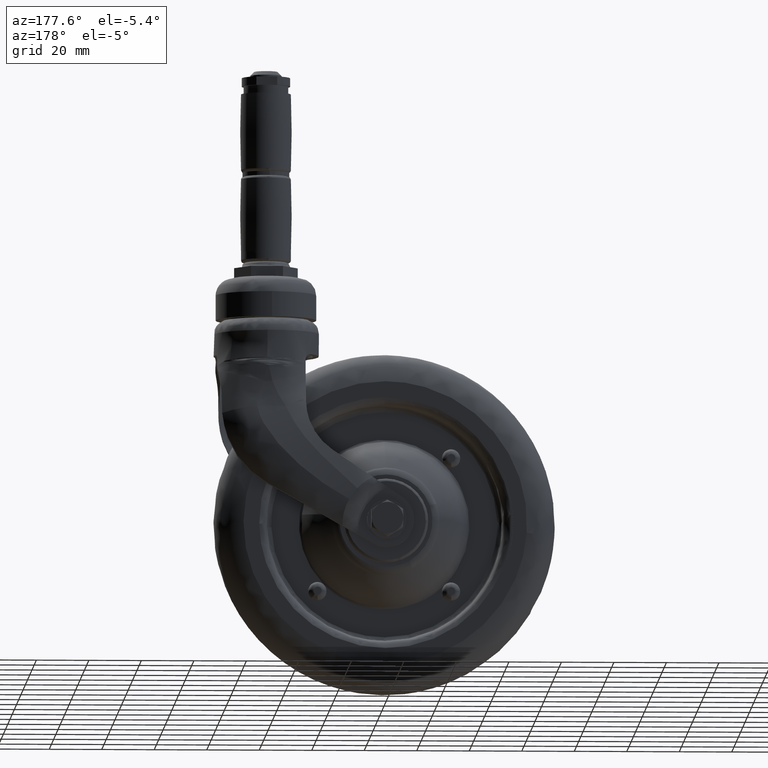
[diagram: clean part render]
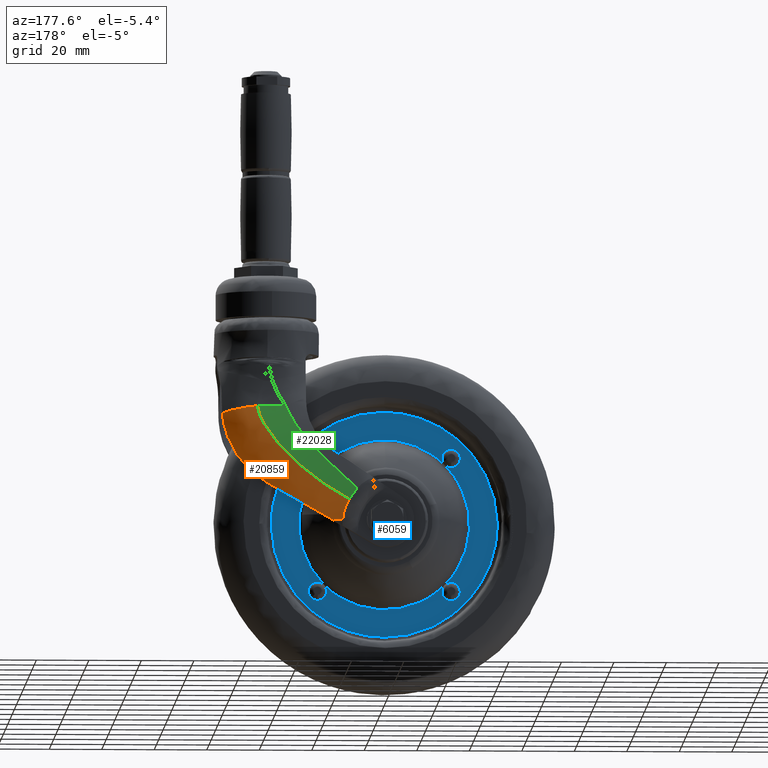
[diagram: same view with three faces highlighted in distinct colors, each labeled with its STEP entity id]
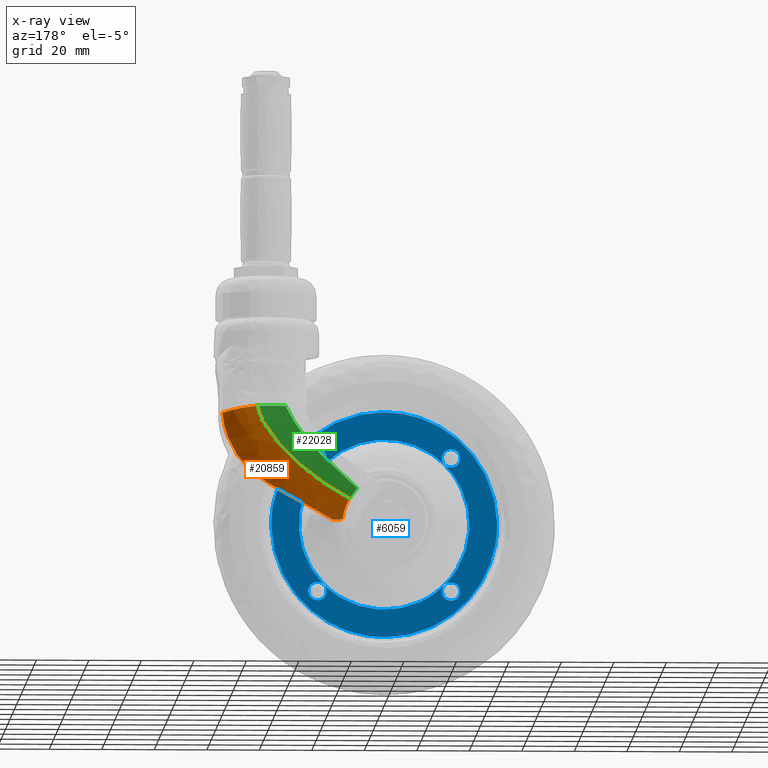
[diagram: x-ray of the same camera — body ghosted, the three highlighted faces saturated]
A machine part, auxiliary view with three faces highlighted in distinct colors.
The next image is the same camera in x-ray (body ghosted, the three faces saturated) — at least one of them is partly hidden behind the body in this view.
Their STEP definitions:

[orange] entity #20859 — the highlighted face is a freeform B-spline surface patch.
#19340=CARTESIAN_POINT('',(45.0,21.160677943608750,13.856406867544759));
#19341=VERTEX_POINT('',#19340);
#19390=CARTESIAN_POINT('',(20.428876517512450,23.865617981468350,-0.329738140940673));
#19391=VERTEX_POINT('',#19390);
#19399=CARTESIAN_POINT('',(45.0,21.160677943608800,13.856406867544759));
#19400=CARTESIAN_POINT('',(43.989680225818091,21.415746738411350,13.273098463608729));
#19401=CARTESIAN_POINT('',(42.976852915194030,21.644800895303469,12.688342332807160));
#19402=CARTESIAN_POINT('',(40.947104869801613,22.060441652030431,11.516466731630461));
#19403=CARTESIAN_POINT('',(39.930181249478153,22.246998315442902,10.929345595279321));
#19404=CARTESIAN_POINT('',(37.892888339765562,22.584364272220380,9.753113964579129));
#19405=CARTESIAN_POINT('',(36.872517685321597,22.735159403714999,9.164002682115312));
#19406=CARTESIAN_POINT('',(34.828776205031922,23.005624147897660,7.984047967390516));
#19407=CARTESIAN_POINT('',(33.805400550759018,23.125243667681062,7.393201747435768));
#19408=CARTESIAN_POINT('',(31.755959833279601,23.336581218589188,6.209956576526960));
#19409=CARTESIAN_POINT('',(30.729895351499220,23.428305281766040,5.617557961259442));
#19410=CARTESIAN_POINT('',(28.675269192702931,23.585846055886140,4.431318974357375));
#19411=CARTESIAN_POINT('',(27.646708017541940,23.651667973363530,3.837478892468908));
#19412=CARTESIAN_POINT('',(26.102034196297922,23.731394011723481,2.945661030147846));
#19413=CARTESIAN_POINT('',(25.586836480935251,23.754790154737041,2.648211485222302));
#19414=CARTESIAN_POINT('',(24.555819564481371,23.795134787233419,2.052953580412182));
#19415=CARTESIAN_POINT('',(24.039978132816831,23.812083630124569,1.755132385699883));
#19416=CARTESIAN_POINT('',(22.492592048457240,23.852902510786130,0.861748597511165));
#19417=CARTESIAN_POINT('',(21.460832101325941,23.866899430274671,0.266061703731794));
#19418=CARTESIAN_POINT('',(20.428876517512450,23.865617981468350,-0.329738140940673));
#19419=B_SPLINE_CURVE_WITH_KNOTS('',3,(#19399,#19400,#19401,#19402,#19403,#19404,#19405,#19406,#19407,#19408,#19409,#19410,#19411,#19412,#19413,#19414,#19415,#19416,#19417,#19418),.UNSPECIFIED.,.F.,.U.,(4,2,2,2,2,2,2,2,2,4),(0.0,0.125000000000000,0.250000000000000,0.375000000000000,0.500000000000000,0.625000000000000,0.750000000000000,0.812500000000000,0.875000000000000,1.0),.UNSPECIFIED.);
#19420=EDGE_CURVE('',#19341,#19391,#19419,.T.);
#19529=CARTESIAN_POINT('',(62.366863282860898,16.766696884247501,41.117403409304963));
#19530=VERTEX_POINT('',#19529);
#19565=CARTESIAN_POINT('',(45.0,21.160677943608750,13.856406867544759));
#19566=CARTESIAN_POINT('',(46.205984182559121,20.856211035632811,14.552682159983711));
#19567=CARTESIAN_POINT('',(47.363235774850750,20.570150283340880,15.316406603418340));
#19568=CARTESIAN_POINT('',(49.582984952802747,20.043594842299239,16.977891262209472));
#19569=CARTESIAN_POINT('',(50.645477100497402,19.803149245825001,17.875672906743979));
#19570=CARTESIAN_POINT('',(51.912533597609723,19.532443983397481,19.084416120717002));
#19571=CARTESIAN_POINT('',(52.162878164729293,19.479777023431591,19.330502662252879));
#19572=CARTESIAN_POINT('',(52.657331755323568,19.377346039920891,19.831468057995870));
#19573=CARTESIAN_POINT('',(52.901783388843107,19.327514883559360,20.086731457001100));
#19574=CARTESIAN_POINT('',(53.621362232827209,19.183095888869818,20.861262719443520));
#19575=CARTESIAN_POINT('',(54.083720132921179,19.093380218695359,21.390180931306151));
#19576=CARTESIAN_POINT('',(55.419434883811569,18.841345440819580,23.013815350220039));
#19577=CARTESIAN_POINT('',(56.241604961271896,18.696345382348959,24.145320676253910));
#19578=CARTESIAN_POINT('',(57.748744691143720,18.433568331735991,26.504544339386321));
#19579=CARTESIAN_POINT('',(58.433716767370363,18.315821387334680,27.732264786918751));
#19580=CARTESIAN_POINT('',(59.123659938749043,18.184189946054740,29.168113971764210));
#19581=CARTESIAN_POINT('',(59.199196434200999,18.169570799108939,29.328413873590350));
#19582=CARTESIAN_POINT('',(59.348003121096113,18.140286196552800,29.650541041188049));
#19583=CARTESIAN_POINT('',(59.421279090714933,18.125618957273531,29.812388418999220));
#19584=CARTESIAN_POINT('',(59.636953269504012,18.081606518936500,30.298555742165711));
#19585=CARTESIAN_POINT('',(59.775455714910692,18.052200941245321,30.624048971794640));
#19586=CARTESIAN_POINT('',(60.175302898072587,17.963050764946949,31.604537258074188));
#19587=CARTESIAN_POINT('',(60.420998951209583,17.902380017188740,32.263538768548862));
#19588=CARTESIAN_POINT('',(61.096489525226758,17.710509268514720,34.255569396385191));
#19589=CARTESIAN_POINT('',(61.464845723230887,17.569647119157381,35.603606232781409));
#19590=CARTESIAN_POINT('',(62.038849176634791,17.225580970868549,38.335021573524962));
#19591=CARTESIAN_POINT('',(62.244488677204032,17.022335999565620,39.718397209050423));
#19592=CARTESIAN_POINT('',(62.366863282860898,16.766696884247501,41.117403409304963));
#19593=B_SPLINE_CURVE_WITH_KNOTS('',3,(#19565,#19566,#19567,#19568,#19569,#19570,#19571,#19572,#19573,#19574,#19575,#19576,#19577,#19578,#19579,#19580,#19581,#19582,#19583,#19584,#19585,#19586,#19587,#19588,#19589,#19590,#19591,#19592),.UNSPECIFIED.,.F.,.U.,(4,2,2,2,2,2,2,2,2,2,2,2,2,4),(0.0,0.125000000000001,0.250000000000003,0.281250000000003,0.312500000000003,0.375000000000004,0.500000000000006,0.625000000000007,0.640625000000007,0.656250000000007,0.687500000000006,0.750000000000005,0.875000000000002,1.0),.UNSPECIFIED.);
#19594=EDGE_CURVE('',#19341,#19530,#19593,.T.);
#20269=CARTESIAN_POINT('',(14.340152830892860,25.932459926239702,7.507047291741730));
#20270=VERTEX_POINT('',#20269);
#20386=CARTESIAN_POINT('',(16.820676935615150,24.686819785036899,-0.152745643553709));
#20387=VERTEX_POINT('',#20386);
#20417=CARTESIAN_POINT('',(16.820676935615150,24.686819785036899,-0.152745643553709));
#20418=CARTESIAN_POINT('',(16.807535025087709,24.743621361755849,0.010171780269549));
#20419=CARTESIAN_POINT('',(16.791349773862009,24.798883639703011,0.173448168466215));
#20420=CARTESIAN_POINT('',(16.753225625979059,24.905957789278251,0.500031823508883));
#20421=CARTESIAN_POINT('',(16.731317967004539,24.957697701880779,0.663111512009529));
#20422=CARTESIAN_POINT('',(16.657493729049779,25.107440838036990,1.151835627062865));
#20423=CARTESIAN_POINT('',(16.597496368812479,25.199969346715509,1.476969359944065));
#20424=CARTESIAN_POINT('',(16.387787169917409,25.454922837533591,2.451109958683017));
#20425=CARTESIAN_POINT('',(16.208589478213391,25.594770825495090,3.098895957300331));
#20426=CARTESIAN_POINT('',(15.939828690623690,25.728877782814020,3.908363462962226));
#20427=CARTESIAN_POINT('',(15.883820194320640,25.753646734341981,4.070211255805797));
#20428=CARTESIAN_POINT('',(15.768078769256739,25.798768743125319,4.391926082136554));
#20429=CARTESIAN_POINT('',(15.708264575466940,25.819165225579241,4.552043831222218));
#20430=CARTESIAN_POINT('',(15.523173979389650,25.873883677764169,5.030257810320370));
#20431=CARTESIAN_POINT('',(15.392261815968810,25.901738936966819,5.346219969359402));
#20432=CARTESIAN_POINT('',(14.977952209183520,25.959455576452051,6.285999865447662));
#20433=CARTESIAN_POINT('',(14.673156896826161,25.963535015623251,6.901785012937865));
#20434=CARTESIAN_POINT('',(14.340152830892860,25.932459926239702,7.507047291741730));
#20435=B_SPLINE_CURVE_WITH_KNOTS('',3,(#20417,#20418,#20419,#20420,#20421,#20422,#20423,#20424,#20425,#20426,#20427,#20428,#20429,#20430,#20431,#20432,#20433,#20434),.UNSPECIFIED.,.F.,.U.,(4,2,2,2,2,2,2,2,4),(0.0,0.062500000000000,0.125000000000000,0.250000000000000,0.500000000000000,0.562500000000000,0.624999999999999,0.750000000000000,1.0),.UNSPECIFIED.);
#20436=EDGE_CURVE('',#20387,#20270,#20435,.T.);
#20519=CARTESIAN_POINT('',(13.239447692727893,25.958135332169274,6.996827014823555));
#20520=CARTESIAN_POINT('',(13.721767604717982,25.946364581262461,7.235625048382977));
#20521=CARTESIAN_POINT('',(14.202190638587174,25.933881579638832,7.481875208011846));
#20522=CARTESIAN_POINT('',(14.917117036217451,25.914138230505390,7.859728902655068));
#20523=CARTESIAN_POINT('',(15.154527620371157,25.907385573926970,7.987133801489046));
#20524=CARTESIAN_POINT('',(15.627686412272739,25.893535270231975,8.244641312149881));
#20525=CARTESIAN_POINT('',(15.863437687074681,25.886437936851443,8.374738341858871));
#20526=CARTESIAN_POINT('',(17.038341202194189,25.850085743213018,9.031469991665558));
#20527=CARTESIAN_POINT('',(17.966036240459932,25.818238375298915,9.576665079065837));
#20528=CARTESIAN_POINT('',(19.801023199562025,25.748685048839917,10.700002421590403));
#20529=CARTESIAN_POINT('',(20.708249131413940,25.710975995393312,11.278256874269829));
#20530=CARTESIAN_POINT('',(22.504020612988704,25.629226102842210,12.464856530940290));
#20531=CARTESIAN_POINT('',(23.392548300075802,25.585185208133311,13.073234455040685));
#20532=CARTESIAN_POINT('',(25.151700324043215,25.490214060242945,14.318759577964691));
#20533=CARTESIAN_POINT('',(26.022319152274754,25.439284612000861,14.955919167974757));
#20534=CARTESIAN_POINT('',(27.314886288223729,25.357233352439327,15.933069913198628));
#20535=CARTESIAN_POINT('',(27.743514848890428,25.328939965040078,16.262360370801275));
#20536=CARTESIAN_POINT('',(28.596269166841505,25.270373819915616,16.928151714222995));
#20537=CARTESIAN_POINT('',(29.020387978672950,25.240100264972956,17.264661957747776));
#20538=CARTESIAN_POINT('',(30.285960877570034,25.146169231595564,18.285081673250872));
#20539=CARTESIAN_POINT('',(31.120640167797259,25.079406451554700,18.979840398713101));
#20540=CARTESIAN_POINT('',(32.771083128780674,24.936709950948337,20.399589445036600));
#20541=CARTESIAN_POINT('',(33.586845965836730,24.860778251321509,21.124582969335556));
#20542=CARTESIAN_POINT('',(35.197761340190809,24.698616758787097,22.607435316284384));
#20543=CARTESIAN_POINT('',(35.992516008250057,24.612408256453151,23.365009472565202));
#20544=CARTESIAN_POINT('',(37.550611361876790,24.429309814588983,24.908596349771166));
#20545=CARTESIAN_POINT('',(38.314951828211825,24.332328150320414,25.695490748249430));
#20546=CARTESIAN_POINT('',(39.810123885878724,24.126024132274516,27.303635552811659));
#20547=CARTESIAN_POINT('',(40.540985450668387,24.016709515976295,28.124858186276263));
#20548=CARTESIAN_POINT('',(41.963142919540964,23.783755004974722,29.807828009725796));
#20549=CARTESIAN_POINT('',(42.655585222282546,23.659912794301135,30.670966107257929));
#20550=CARTESIAN_POINT('',(43.986492850867656,23.396055419337710,32.440638195216543));
#20551=CARTESIAN_POINT('',(44.623127147162307,23.256476465597121,33.344369409498796));
#20552=CARTESIAN_POINT('',(45.523184929322532,23.033330466934213,34.735919332948782));
#20553=CARTESIAN_POINT('',(45.814001961692782,22.956642627111425,35.205800336346954));
#20554=CARTESIAN_POINT('',(46.374219180015125,22.798097633535782,36.159584541005401));
#20555=CARTESIAN_POINT('',(46.643641025302287,22.716243758731284,36.643473433405354));
#20556=CARTESIAN_POINT('',(47.156813695016886,22.546610668640259,37.628044964448939));
#20557=CARTESIAN_POINT('',(47.400610662336746,22.458838482266408,38.128696661158642));
#20558=CARTESIAN_POINT('',(47.856042389652735,22.276264986097839,39.151015047747535));
#20559=CARTESIAN_POINT('',(48.067888005785449,22.181283758251769,39.673579922460021));
#20560=CARTESIAN_POINT('',(48.442776678957955,21.986073177624142,40.727952774447196));
#20561=CARTESIAN_POINT('',(48.606864732401199,21.885537822395275,41.261520082566719));
#20562=CARTESIAN_POINT('',(48.805703856825474,21.729479287718753,42.074747686733097));
#20563=CARTESIAN_POINT('',(48.864033206053698,21.676580103137347,42.347984920345105));
#20564=CARTESIAN_POINT('',(48.961558703240122,21.568797987502048,42.899675520411435));
#20565=CARTESIAN_POINT('',(49.000764140184152,21.513915314846820,43.178128846465924));
#20566=CARTESIAN_POINT('',(49.036927702405173,21.440063733187070,43.549415125165822));
#20567=CARTESIAN_POINT('',(49.045654993001079,21.422241257343309,43.639017007543160));
#20568=CARTESIAN_POINT('',(49.054382299587061,21.404418748845167,43.728619054089101));
#20569=CARTESIAN_POINT('',(13.247548472240631,25.959015112155587,6.978926808150730));
#20570=CARTESIAN_POINT('',(13.730416805953856,25.947300091142182,7.216937102094594));
#20571=CARTESIAN_POINT('',(14.211397923275372,25.934874880105923,7.462414950411644));
#20572=CARTESIAN_POINT('',(14.927175457223484,25.915221285112718,7.839131739052979));
#20573=CARTESIAN_POINT('',(15.164873324592998,25.908499124315853,7.966159682910993));
#20574=CARTESIAN_POINT('',(15.638598120966750,25.894709909461461,8.222937203010757));
#20575=CARTESIAN_POINT('',(15.874629129240684,25.887643233383347,8.352679801964561));
#20576=CARTESIAN_POINT('',(17.050912830847459,25.851444472904820,9.007692758574095));
#20577=CARTESIAN_POINT('',(17.979675017703386,25.819722622892368,9.551653601403819));
#20578=CARTESIAN_POINT('',(19.816752371937707,25.750426441528887,10.672730944402817));
#20579=CARTESIAN_POINT('',(20.725000305745937,25.712848812087319,11.249959937364595));
#20580=CARTESIAN_POINT('',(22.522786140430657,25.631367301864870,12.434680070103017));
#20581=CARTESIAN_POINT('',(23.412305640028354,25.587463217320856,13.042203188462938));
#20582=CARTESIAN_POINT('',(25.173422037548082,25.492770029176850,14.286169294134487));
#20583=CARTESIAN_POINT('',(26.045013074674202,25.441981617769315,14.922623625206210));
#20584=CARTESIAN_POINT('',(27.339036204968497,25.360144591301761,15.898817428359864));
#20585=CARTESIAN_POINT('',(27.768147408104728,25.331922716573199,16.227807246906323));
#20586=CARTESIAN_POINT('',(28.621866085289380,25.273500008315896,16.893031250103185));
#20587=CARTESIAN_POINT('',(29.046468399818202,25.243298540564673,17.229272878311374));
#20588=CARTESIAN_POINT('',(30.313462971934111,25.149580993994963,18.248964507574748));
#20589=CARTESIAN_POINT('',(31.149069002510291,25.082958934352931,18.943325834500651));
#20590=CARTESIAN_POINT('',(32.801345838448960,24.940537957521034,20.362442420788689));
#20591=CARTESIAN_POINT('',(33.618016478754249,24.864741223729439,21.087198960212383));
#20592=CARTESIAN_POINT('',(35.230752269802565,24.702840713513005,22.569735770596580));
#20593=CARTESIAN_POINT('',(36.026419670387462,24.616758349431354,23.327229862503174));
#20594=CARTESIAN_POINT('',(37.586357836104519,24.433896993393471,24.870825798740579));
#20595=CARTESIAN_POINT('',(38.351629881444225,24.337026708421966,25.657807178167040));
#20596=CARTESIAN_POINT('',(39.848705952286771,24.130922729979833,27.266321093769299));
#20597=CARTESIAN_POINT('',(40.580540281578216,24.021697161916389,28.087823635314972));
#20598=CARTESIAN_POINT('',(42.004707337052949,23.788884911453110,29.771601881065479));
#20599=CARTESIAN_POINT('',(42.698188670632909,23.665096572271548,30.635266641070508));
#20600=CARTESIAN_POINT('',(44.031256685007754,23.401287315338781,32.406338495090054));
#20601=CARTESIAN_POINT('',(44.669010177545282,23.261703620872929,33.310935969050270));
#20602=CARTESIAN_POINT('',(45.570820150125350,23.038473416097858,34.704182871028010));
#20603=CARTESIAN_POINT('',(45.862232406609408,22.961744598578925,35.174695333462914));
#20604=CARTESIAN_POINT('',(46.423664266755701,22.803081777571325,36.129919142480681));
#20605=CARTESIAN_POINT('',(46.693705962117150,22.721151225719918,36.614615603042509));
#20606=CARTESIAN_POINT('',(47.208139543823016,22.551313419782289,37.601047303196324));
#20607=CARTESIAN_POINT('',(47.452578345886863,22.463413467806379,38.102750694787893));
#20608=CARTESIAN_POINT('',(47.909302714339027,22.280506580432640,39.127534730091035));
#20609=CARTESIAN_POINT('',(48.121801532796688,22.185319221193669,39.651517193381352));
#20610=CARTESIAN_POINT('',(48.497947026548331,21.989580329328547,40.709238281699598));
#20611=CARTESIAN_POINT('',(48.662643339406543,21.888722600025865,41.244739835920903));
#20612=CARTESIAN_POINT('',(48.862287851299882,21.732036957626764,42.061497909569702));
#20613=CARTESIAN_POINT('',(48.920867434251853,21.678904193842751,42.336019744584540));
#20614=CARTESIAN_POINT('',(49.018831212674037,21.570592532281719,42.890549477117936));
#20615=CARTESIAN_POINT('',(49.058224620023282,21.515413712154668,43.170558215172889));
#20616=CARTESIAN_POINT('',(49.094574359640617,21.441121906569613,43.544105169082258));
#20617=CARTESIAN_POINT('',(49.103346559460022,21.423193234441658,43.634252404141286));
#20618=CARTESIAN_POINT('',(49.112118767323075,21.405264545874086,43.724399721860536));
#20619=CARTESIAN_POINT('',(14.903329091034818,26.138840108979867,3.320165915490614));
#20620=CARTESIAN_POINT('',(15.501741968327845,26.138889134381390,3.389713224302566));
#20621=CARTESIAN_POINT('',(16.100943678202349,26.138722892252346,3.468724260538856));
#20622=CARTESIAN_POINT('',(16.998253929818883,26.138227568160712,3.598074210515959));
#20623=CARTESIAN_POINT('',(17.297550582225693,26.138047885683932,3.642526923732014));
#20624=CARTESIAN_POINT('',(17.893151466600226,26.137411293727542,3.738481720755030));
#20625=CARTESIAN_POINT('',(18.189675554270586,26.136969226034978,3.789680398822922));
#20626=CARTESIAN_POINT('',(19.666810876699721,26.134168250674911,4.060138285302885));
#20627=CARTESIAN_POINT('',(20.831454809019711,26.130069160324805,4.321915973587801));
#20628=CARTESIAN_POINT('',(23.138584712660695,26.118189882218946,4.913287743107850));
#20629=CARTESIAN_POINT('',(24.280804768916539,26.110395266280342,5.243313922735267));
#20630=CARTESIAN_POINT('',(26.547863463853336,26.090639851369069,5.962035557818482));
#20631=CARTESIAN_POINT('',(27.672629692896674,26.078675969524127,6.350854468958115));
#20632=CARTESIAN_POINT('',(29.907809437014070,26.049859925031409,7.182906972035506));
#20633=CARTESIAN_POINT('',(31.018197401882148,26.033007998397832,7.626182377726480));
#20634=CARTESIAN_POINT('',(32.674773117508899,26.003360252195247,8.330996403058089));
#20635=CARTESIAN_POINT('',(33.225460290026732,25.992747611935968,8.572605588731001));
#20636=CARTESIAN_POINT('',(34.324096850561645,25.969921638537766,9.069238264925897));
#20637=CARTESIAN_POINT('',(34.872530716742936,25.957756056426994,9.323764720035957));
#20638=CARTESIAN_POINT('',(36.507341954089426,25.917960417680234,10.114843868791317));
#20639=CARTESIAN_POINT('',(37.585256709724426,25.887228484862796,10.676557544823693));
#20640=CARTESIAN_POINT('',(39.722631891325051,25.816028909665018,11.866667136584253));
#20641=CARTESIAN_POINT('',(40.782055931223333,25.775566488444685,12.495087660697349));
#20642=CARTESIAN_POINT('',(42.885940418184497,25.682963690874150,13.821964224138226));
#20643=CARTESIAN_POINT('',(43.929888311303152,25.630832383640687,14.520217741467986));
#20644=CARTESIAN_POINT('',(45.994228236251047,25.512839902413706,15.986875566780567));
#20645=CARTESIAN_POINT('',(47.015907075280339,25.446944117210212,16.756001654878762));
#20646=CARTESIAN_POINT('',(49.038808524592746,25.297750211334307,18.378157810791329));
#20647=CARTESIAN_POINT('',(50.040058438096061,25.214490210032370,19.231029176118874));
#20648=CARTESIAN_POINT('',(52.020879016920823,25.025087102289344,21.041848267793295));
#20649=CARTESIAN_POINT('',(53.002111106779090,24.918827155156571,22.001117414880508));
#20650=CARTESIAN_POINT('',(54.931103239804472,24.675236803755404,24.054474195790462));
#20651=CARTESIAN_POINT('',(55.876245551590223,24.538471066786173,25.144595748217412));
#20652=CARTESIAN_POINT('',(57.253750004204434,24.299824015701589,26.920554450956526));
#20653=CARTESIAN_POINT('',(57.706134377051107,24.214630613240509,27.536270981665403));
#20654=CARTESIAN_POINT('',(58.593539572440932,24.029824724480090,28.828400938393159));
#20655=CARTESIAN_POINT('',(59.028619489861889,23.930244551233695,29.504672701486193));
#20656=CARTESIAN_POINT('',(59.874990821205365,23.711918664439381,30.938218185352948));
#20657=CARTESIAN_POINT('',(60.286414629980627,23.593242842740896,31.695186187641003));
#20658=CARTESIAN_POINT('',(61.073701377156084,23.328904973008857,33.323885124487603));
#20659=CARTESIAN_POINT('',(61.450145785479677,23.182954551145713,34.197233925058008));
#20660=CARTESIAN_POINT('',(62.133414743129208,22.856380266818260,36.083911945411955));
#20661=CARTESIAN_POINT('',(62.442039600535843,22.675481454922291,37.099393074737634));
#20662=CARTESIAN_POINT('',(62.824966590718155,22.363168138425277,38.791980025225065));
#20663=CARTESIAN_POINT('',(62.939091961640365,22.252143707477241,39.384796060557619));
#20664=CARTESIAN_POINT('',(63.132145668466386,22.012811234256496,40.641674405796415));
#20665=CARTESIAN_POINT('',(63.211107940164055,21.884478542880782,41.305863356203226));
#20666=CARTESIAN_POINT('',(63.286658795321252,21.701634600847083,42.236842116862690));
#20667=CARTESIAN_POINT('',(63.304880746251470,21.657534857267844,42.461382914693623));
#20668=CARTESIAN_POINT('',(63.323098608916283,21.613445007879218,42.685873334693014));
#20669=CARTESIAN_POINT('',(16.431698505603507,24.760436676616735,-0.132961298430985));
#20670=CARTESIAN_POINT('',(17.124479772373608,24.621248945617392,-0.200559777492513));
#20671=CARTESIAN_POINT('',(17.817199274659245,24.472674097061422,-0.252347437268431));
#20672=CARTESIAN_POINT('',(18.852676532353129,24.236242144295595,-0.309642666053027));
#20673=CARTESIAN_POINT('',(19.197955315439234,24.154649179599090,-0.326165723820532));
#20674=CARTESIAN_POINT('',(19.882692549199348,23.990646342960769,-0.346423527590003));
#20675=CARTESIAN_POINT('',(20.222548438582745,23.907992956492681,-0.350699721284512));
#20676=CARTESIAN_POINT('',(21.910738507650731,23.491761656741065,-0.345819759075978));
#20677=CARTESIAN_POINT('',(23.226630473204224,23.149312485823099,-0.259406358265871));
#20678=CARTESIAN_POINT('',(25.808381837319306,22.452120056775485,0.034348453276131));
#20679=CARTESIAN_POINT('',(27.073785555091721,22.097385010624652,0.242440614143676));
#20680=CARTESIAN_POINT('',(29.562270203798469,21.380867628802065,0.759095140279293));
#20681=CARTESIAN_POINT('',(30.785237226756898,21.019086782980864,1.067868987162937));
#20682=CARTESIAN_POINT('',(33.194174482509439,20.292196927243637,1.773482637525134));
#20683=CARTESIAN_POINT('',(34.380111952562700,19.927085940828196,2.170394460074651));
#20684=CARTESIAN_POINT('',(36.134612272984036,19.378583037488312,2.826148469596372));
#20685=CARTESIAN_POINT('',(36.715372719505659,19.195601059546192,3.054830653222651));
#20686=CARTESIAN_POINT('',(37.869270667188651,18.829481123445554,3.531787828759383));
#20687=CARTESIAN_POINT('',(38.442895409296106,18.645485812283368,3.779555164129148));
#20688=CARTESIAN_POINT('',(40.146072576782423,18.105327331322563,4.559055351031825));
#20689=CARTESIAN_POINT('',(41.260383926024993,17.757526283147790,5.124161559626810));
#20690=CARTESIAN_POINT('',(43.457875119549307,17.079523708773010,6.336118583018481));
#20691=CARTESIAN_POINT('',(44.540978104087841,16.749348843085865,6.983044942864307));
#20692=CARTESIAN_POINT('',(46.683474497211996,16.100944534469779,8.357832251059623));
#20693=CARTESIAN_POINT('',(47.742313125866360,15.782889644279539,9.085513196362935));
#20694=CARTESIAN_POINT('',(49.830858675098973,15.156959561527607,10.619128197664841));
#20695=CARTESIAN_POINT('',(50.861854778115955,14.848699106448032,11.425813944459350));
#20696=CARTESIAN_POINT('',(52.901143819035397,14.236965061299641,13.130170801366191));
#20697=CARTESIAN_POINT('',(53.909430919441220,13.933503903503748,14.027662878356699));
#20698=CARTESIAN_POINT('',(55.906045096351832,13.326783404746497,15.935465187531749));
#20699=CARTESIAN_POINT('',(56.895989228647721,13.023043561922510,16.947117363752334));
#20700=CARTESIAN_POINT('',(58.850056575605251,12.413018120319183,19.116199756630156));
#20701=CARTESIAN_POINT('',(59.811403418734798,12.107677209966779,20.269264385345995));
#20702=CARTESIAN_POINT('',(61.226595378105721,11.645469366648399,22.154926663857665));
#20703=CARTESIAN_POINT('',(61.693816637315905,11.490697172362605,22.809821438192838));
#20704=CARTESIAN_POINT('',(62.617605783353362,11.178907914945999,24.188373170101560));
#20705=CARTESIAN_POINT('',(63.074221890281869,11.021909268785805,24.911834562117424));
#20706=CARTESIAN_POINT('',(63.973447981953925,10.704348710939790,26.452903906118646));
#20707=CARTESIAN_POINT('',(64.416191215553525,10.543856702535773,27.270079608577909));
#20708=CARTESIAN_POINT('',(65.280136215523171,10.216382895764839,29.042193778844663));
#20709=CARTESIAN_POINT('',(65.702202138457011,10.049361080291252,29.998812912365892));
#20710=CARTESIAN_POINT('',(66.492831691842028,9.705942354689258,32.091269280016292));
#20711=CARTESIAN_POINT('',(66.864046334882303,9.530108103600369,33.229264723843713));
#20712=CARTESIAN_POINT('',(67.347089605270511,9.236125008025121,35.160676656456346));
#20713=CARTESIAN_POINT('',(67.495497810420090,9.132830424119483,35.842469315627923));
#20714=CARTESIAN_POINT('',(67.753680131585057,8.905613944413027,37.301343242079362));
#20715=CARTESIAN_POINT('',(67.863542883283685,8.781714392883163,38.078667405370055));
#20716=CARTESIAN_POINT('',(67.969397020992290,8.591504214678077,39.176417984193698));
#20717=CARTESIAN_POINT('',(67.994942558616771,8.545601226197212,39.441335627666405));
#20718=CARTESIAN_POINT('',(68.020488119593963,8.499698195753686,39.706253513316106));
#20719=CARTESIAN_POINT('',(16.439153304791105,24.753713353911003,-0.149804327154007));
#20720=CARTESIAN_POINT('',(17.132379455711639,24.613860890145691,-0.218037659464924));
#20721=CARTESIAN_POINT('',(17.825536849999757,24.464580426526854,-0.270424415832654));
#20722=CARTESIAN_POINT('',(18.861655484467725,24.227032897158431,-0.328563489528815));
#20723=CARTESIAN_POINT('',(19.207146356931450,24.145056749373751,-0.345359750311852));
#20724=CARTESIAN_POINT('',(19.892292497438525,23.980287756958525,-0.366134042386149));
#20725=CARTESIAN_POINT('',(20.232346052470287,23.897250204684664,-0.370654656035954));
#20726=CARTESIAN_POINT('',(21.921489867522489,23.479101059390675,-0.366930083607659));
#20727=CARTESIAN_POINT('',(23.238050857093970,23.135100006123292,-0.281250459529400));
#20728=CARTESIAN_POINT('',(25.820985316020501,22.434813411062471,0.011316138627243));
#20729=CARTESIAN_POINT('',(27.086903306824816,22.078537164446573,0.218953086110703));
#20730=CARTESIAN_POINT('',(29.576281315637676,21.358976374223460,0.734911615502476));
#20731=CARTESIAN_POINT('',(30.799628342537630,20.995693813261905,1.043443146478090));
#20732=CARTESIAN_POINT('',(33.209206957381333,20.265860253399847,1.748738875266822));
#20733=CARTESIAN_POINT('',(34.395406834878834,19.899307317102256,2.145573593010838));
#20734=CARTESIAN_POINT('',(36.150224386375179,19.348689516888257,2.801308496905095));
#20735=CARTESIAN_POINT('',(36.731077425172820,19.165013705812004,3.030000508326232));
#20736=CARTESIAN_POINT('',(37.885136580758278,18.797525112846003,3.507005768820839));
#20737=CARTESIAN_POINT('',(38.458829846952888,18.612851354918853,3.754811512112581));
#20738=CARTESIAN_POINT('',(40.162180432880632,18.070742531689916,4.534461103412080));
#20739=CARTESIAN_POINT('',(41.276567989688921,17.721725721627784,5.099710615530782));
#20740=CARTESIAN_POINT('',(43.474157761057810,17.041439607275056,6.312009861325988));
#20741=CARTESIAN_POINT('',(44.557283612007140,16.710194783350268,6.959134722845387));
#20742=CARTESIAN_POINT('',(46.699790940301668,16.059774536519502,8.334355121817888));
#20743=CARTESIAN_POINT('',(47.758617920897727,15.740772436555835,9.062270313427771));
#20744=CARTESIAN_POINT('',(49.847120993173263,15.113064111411461,10.596375937198204));
#20745=CARTESIAN_POINT('',(50.878086427021145,14.803969691146968,11.403318127511362));
#20746=CARTESIAN_POINT('',(52.917309742481613,14.190669804062955,13.108205189948871));
#20747=CARTESIAN_POINT('',(53.925561742203612,13.886475194954087,14.005970839163910));
#20748=CARTESIAN_POINT('',(55.922118767327063,13.278385297494808,15.914339109565539));
#20749=CARTESIAN_POINT('',(56.912040524972610,12.974006909645176,16.926283827132028));
#20750=CARTESIAN_POINT('',(58.866102422570883,12.362811427972025,19.095980379379309));
#20751=CARTESIAN_POINT('',(59.827465486489587,12.056938647521521,20.249364827228835));
#20752=CARTESIAN_POINT('',(61.242745054083912,11.594029225373722,22.135554315489870));
#20753=CARTESIAN_POINT('',(61.710006112161089,11.439039646278815,22.790632663612225));
#20754=CARTESIAN_POINT('',(62.633905794744059,11.126853580002940,24.169578125111730));
#20755=CARTESIAN_POINT('',(63.090592563805643,10.969675232484526,24.893249479777353));
#20756=CARTESIAN_POINT('',(63.990004677882105,10.651801527441750,26.434784408524550));
#20757=CARTESIAN_POINT('',(64.432863274326280,10.491175854511525,27.252215291844678));
#20758=CARTESIAN_POINT('',(65.297103126062083,10.163492741139212,29.024923316610469));
#20759=CARTESIAN_POINT('',(65.719349858193624,9.996395841527409,29.981881493568601));
#20760=CARTESIAN_POINT('',(66.510416996980837,9.652895246299648,32.075163493300487));
#20761=CARTESIAN_POINT('',(66.881892408856046,9.477056781127773,33.213645888100807));
#20762=CARTESIAN_POINT('',(67.365360214618377,9.183088176396174,35.146005201243632));
#20763=CARTESIAN_POINT('',(67.513915076120682,9.079801373028010,35.828151018482188));
#20764=CARTESIAN_POINT('',(67.772377874253991,8.852585019930702,37.287828974680309));
#20765=CARTESIAN_POINT('',(67.882374621748340,8.728678116040131,38.065604630529876));
#20766=CARTESIAN_POINT('',(67.988360307257096,8.538413235960004,39.164024445173908));
#20767=CARTESIAN_POINT('',(68.013937651036102,8.492496938645640,39.429104215880599));
#20768=CARTESIAN_POINT('',(68.039515041535694,8.446580557458875,39.694184470791846));
#20776=(BOUNDED_SURFACE()B_SPLINE_SURFACE(3,2,((#20519,#20569,#20619,#20669,#20719),(#20520,#20570,#20620,#20670,#20720),(#20521,#20571,#20621,#20671,#20721),(#20522,#20572,#20622,#20672,#20722),(#20523,#20573,#20623,#20673,#20723),(#20524,#20574,#20624,#20674,#20724),(#20525,#20575,#20625,#20675,#20725),(#20526,#20576,#20626,#20676,#20726),(#20527,#20577,#20627,#20677,#20727),(#20528,#20578,#20628,#20678,#20728),(#20529,#20579,#20629,#20679,#20729),(#20530,#20580,#20630,#20680,#20730),(#20531,#20581,#20631,#20681,#20731),(#20532,#20582,#20632,#20682,#20732),(#20533,#20583,#20633,#20683,#20733),(#20534,#20584,#20634,#20684,#20734),(#20535,#20585,#20635,#20685,#20735),(#20536,#20586,#20636,#20686,#20736),(#20537,#20587,#20637,#20687,#20737),(#20538,#20588,#20638,#20688,#20738),(#20539,#20589,#20639,#20689,#20739),(#20540,#20590,#20640,#20690,#20740),(#20541,#20591,#20641,#20691,#20741),(#20542,#20592,#20642,#20692,#20742),(#20543,#20593,#20643,#20693,#20743),(#20544,#20594,#20644,#20694,#20744),(#20545,#20595,#20645,#20695,#20745),(#20546,#20596,#20646,#20696,#20746),(#20547,#20597,#20647,#20697,#20747),(#20548,#20598,#20648,#20698,#20748),(#20549,#20599,#20649,#20699,#20749),(#20550,#20600,#20650,#20700,#20750),(#20551,#20601,#20651,#20701,#20751),(#20552,#20602,#20652,#20702,#20752),(#20553,#20603,#20653,#20703,#20753),(#20554,#20604,#20654,#20704,#20754),(#20555,#20605,#20655,#20705,#20755),(#20556,#20606,#20656,#20706,#20756),(#20557,#20607,#20657,#20707,#20757),(#20558,#20608,#20658,#20708,#20758),(#20559,#20609,#20659,#20709,#20759),(#20560,#20610,#20660,#20710,#20760),(#20561,#20611,#20661,#20711,#20761),(#20562,#20612,#20662,#20712,#20762),(#20563,#20613,#20663,#20713,#20763),(#20564,#20614,#20664,#20714,#20764),(#20565,#20615,#20665,#20715,#20765),(#20566,#20616,#20666,#20716,#20766),(#20567,#20617,#20667,#20717,#20767),(#20568,#20618,#20668,#20718,#20768)),.UNSPECIFIED.,.F.,.F.,.U.)B_SPLINE_SURFACE_WITH_KNOTS((4,2,2,2,2,2,2,2,2,2,2,2,2,2,2,2,2,2,2,2,2,2,2,2,4),(3,1,1,3),(0.0,5.091206804670403,7.636810207005611,10.182413609340820,20.364827218681629,30.547240828022431,40.729654437363237,50.912068046704043,56.003274851374442,61.094481656044849,71.276895265385676,81.459308874726489,91.641722484067287,101.824136093408100,112.006549702748900,122.188963312089700,132.371376921430510,137.462583726100890,142.553790530771290,147.644997335441790,152.736204140112110,157.827410944782510,160.373014347117790,162.918617749453010,163.728351774218400),(0.0,0.129166587032539,25.883528737338409,26.012302364253770),.UNSPECIFIED.)GEOMETRIC_REPRESENTATION_ITEM()RATIONAL_B_SPLINE_SURFACE(((1.000194820573638,1.000097410286819,0.980577486317911,1.000097113938061,1.000194227876121),(1.000213782838909,1.000106891419454,0.978687055293235,1.000106566226495,1.000213132452990),(1.000233987743768,1.000116993871884,0.976672740101855,1.000116637944499,1.000233275888997),(1.000266123603248,1.000133061801624,0.973468975947054,1.000132656991198,1.000265313982395),(1.000277213437624,1.000138606718812,0.972363381933629,1.000138185039230,1.000276370078460),(1.000299488919762,1.000149744459881,0.970142641852077,1.000149288896241,1.000298577792483),(1.000310708860073,1.000155354430036,0.969024077009952,1.000154881799332,1.000309763598663),(1.000367192609975,1.000183596304987,0.963392965342389,1.000183037754768,1.000366075509536),(1.000413610406014,1.000206805203007,0.958765372569136,1.000206176044966,1.000412352089932),(1.000508146254951,1.000254073127475,0.949340680991951,1.000253300167469,1.000506600334938),(1.000556259960102,1.000278129980051,0.944544015633966,1.000277283832513,1.000554567665027),(1.000653462380836,1.000326731190418,0.934853481870635,1.000325737184694,1.000651474369388),(1.000702549889177,1.000351274944588,0.929959733820470,1.000350206270045,1.000700412540091),(1.000801102389777,1.000400551194889,0.920134604700051,1.000399332608503,1.000798665217005),(1.000850567228346,1.000425283614173,0.915203238951889,1.000423989784997,1.000847979569994),(1.000924705801344,1.000462352900672,0.907812040879004,1.000460946296579,1.000921892593158),(1.000949409983112,1.000474704991556,0.905349173126199,1.000473260809021,1.000946521618042),(1.000998757146790,1.000499378573395,0.900429538901758,1.000497859327070,1.000995718654139),(1.001023526843812,1.000511763421906,0.897960139647243,1.000510206497481,1.001020412994962),(1.001095927145829,1.000547963572914,0.890742237398788,1.000546296517720,1.001092593035440),(1.001142150732975,1.000571075366488,0.886134006157981,1.000569337998891,1.001138675997781),(1.001231155954062,1.000615577977031,0.877260687021047,1.000613705220310,1.001227410440620),(1.001273934847663,1.000636967423831,0.872995872321330,1.000635029594558,1.001270059189116),(1.001356444437645,1.000678222218822,0.864770131012803,1.000676158881169,1.001352317762338),(1.001396151425199,1.000698075712599,0.860811568040513,1.000695951975183,1.001391903950366),(1.001472330754730,1.000736165377365,0.853216918037759,1.000733925760762,1.001467851521523),(1.001508855549541,1.000754427774770,0.849575601755361,1.000752132598954,1.001504265197909),(1.001578784798334,1.000789392399167,0.842604049592780,1.000786990851392,1.001573981702784),(1.001612194152542,1.000806097076271,0.839273325187748,1.000803644708296,1.001607289416591),(1.001675594358464,1.000837797179232,0.832952681818462,1.000835248370865,1.001670496741731),(1.001705643024187,1.000852821512093,0.829956999123230,1.000850226995593,1.001700453991187),(1.001761260690146,1.000880630345073,0.824412231145809,1.000877951226490,1.001755902452980),(1.001786778636419,1.000893389318210,0.821868235656084,1.000890671383338,1.001781342766676),(1.001820171011240,1.000910085505620,0.818539204000413,1.000907316776375,1.001814633552751),(1.001830477056800,1.000915238528400,0.817511749316542,1.000912454122249,1.001824908244499),(1.001848987027179,1.000924493513590,0.815666409544493,1.000921680951241,1.001843361902481),(1.001857194703661,1.000928597351831,0.814848150436676,1.000925772304482,1.001851544608964),(1.001870812690117,1.000935406345059,0.813490513903076,1.000932560582889,1.001865121165778),(1.001876226897587,1.000938113448794,0.812950747918914,1.000935259450873,1.001870518901747),(1.001883191063928,1.000941595531964,0.812256459766947,1.000938730940594,1.001877461881187),(1.001884702733503,1.000942351366752,0.812105754826171,1.000939484475925,1.001878968951850),(1.001882578868504,1.000941289434252,0.812317492201904,1.000938425774115,1.001876851548230),(1.001878822566517,1.000939411283258,0.812691974349209,1.000936553336970,1.001873106673940),(1.001869743079786,1.000934871539893,0.813597148027554,1.000932027404747,1.001864054809494),(1.001866161715525,1.000933080857762,0.813954189868974,1.000930242170362,1.001860484340723),(1.001858694874399,1.000929347437200,0.814698591865190,1.000926520107886,1.001853040215773),(1.001854828053090,1.000927414026545,0.815084092166193,1.000924592579196,1.001849185158393),(1.001851024939954,1.000925512469977,0.815463241121319,1.000922696807684,1.001845393615367),(1.001850107145492,1.000925053572746,0.815554740058785,1.000922239306544,1.001844478613088),(1.001849189351031,1.000924594675515,0.815646238996251,1.000921781805404,1.001843563610808)))REPRESENTATION_ITEM('')SURFACE());
#20777=ORIENTED_EDGE('',*,*,#19594,.F.);
#20778=ORIENTED_EDGE('',*,*,#19420,.T.);
#20779=CARTESIAN_POINT('',(16.820676935615150,24.686819785036899,-0.152745643553709));
#20780=CARTESIAN_POINT('',(17.122905003095411,24.624789311506429,-0.179380843744863));
#20781=CARTESIAN_POINT('',(17.425258729327169,24.560944673484229,-0.203112507453551));
#20782=CARTESIAN_POINT('',(18.030153909017180,24.429590240740421,-0.245144457326450));
#20783=CARTESIAN_POINT('',(18.331920545144531,24.362247992920832,-0.263389907161902));
#20784=CARTESIAN_POINT('',(18.933756994830699,24.224314453273401,-0.294700036508700));
#20785=CARTESIAN_POINT('',(19.233897499517429,24.153482677811070,-0.308290974977351));
#20786=CARTESIAN_POINT('',(19.832550865787251,24.010673046067360,-0.325514977676110));
#20787=CARTESIAN_POINT('',(20.131082661834139,23.938501571221629,-0.329687079948344));
#20788=CARTESIAN_POINT('',(20.428876517512450,23.865617981468350,-0.329738140940673));
#20789=B_SPLINE_CURVE_WITH_KNOTS('',3,(#20779,#20780,#20781,#20782,#20783,#20784,#20785,#20786,#20787,#20788),.UNSPECIFIED.,.F.,.U.,(4,2,2,2,4),(0.0,0.250000000000000,0.500000000000000,0.750000000000000,1.0),.UNSPECIFIED.);
#20790=EDGE_CURVE('',#20387,#19391,#20789,.T.);
#20791=ORIENTED_EDGE('',*,*,#20790,.F.);
#20792=ORIENTED_EDGE('',*,*,#20436,.T.);
#20793=CARTESIAN_POINT('',(49.143510529051312,21.460217302238849,43.448091829986701));
#20794=VERTEX_POINT('',#20793);
#20795=CARTESIAN_POINT('',(49.143510529051312,21.460217302238849,43.448091829986701));
#20796=CARTESIAN_POINT('',(49.117589408083433,21.513237719509711,43.181465058303587));
#20797=CARTESIAN_POINT('',(49.081238062397830,21.565282402119990,42.917475435370712));
#20798=CARTESIAN_POINT('',(48.991228479118753,21.667651025306220,42.393852737751558));
#20799=CARTESIAN_POINT('',(48.937566120512763,21.717974622506549,42.134220707024021));
#20800=CARTESIAN_POINT('',(48.754656525832523,21.866627810524751,41.360816817117403));
#20801=CARTESIAN_POINT('',(48.603711259787268,21.962653606812669,40.852479035405644));
#20802=CARTESIAN_POINT('',(48.344403690092093,22.102788027902481,40.098131025045582));
#20803=CARTESIAN_POINT('',(48.252422302336832,22.148844832931051,39.848058010689662));
#20804=CARTESIAN_POINT('',(48.058552442713413,22.239731193350931,39.350359828024523));
#20805=CARTESIAN_POINT('',(47.956504675397781,22.284620859875591,39.102395326696808));
#20806=CARTESIAN_POINT('',(47.638784822466143,22.416790948907611,38.366060170061012));
#20807=CARTESIAN_POINT('',(47.411264037379503,22.501782584797439,37.884137217795569));
#20808=CARTESIAN_POINT('',(46.930896682737682,22.666447296865869,36.934702576419802));
#20809=CARTESIAN_POINT('',(46.678009533489387,22.746114896237518,36.467214477793434));
#20810=CARTESIAN_POINT('',(46.150866236690000,22.900759903467140,35.544364783080759));
#20811=CARTESIAN_POINT('',(45.876590298287987,22.975734608176879,35.089014686890799));
#20812=CARTESIAN_POINT('',(45.025936158300553,23.194323057142199,33.738717904413363));
#20813=CARTESIAN_POINT('',(44.421940645129531,23.331632227857011,32.859403689592590));
#20814=CARTESIAN_POINT('',(43.630159983986083,23.494387053684921,31.781004043673409));
#20815=CARTESIAN_POINT('',(43.469946342290037,23.526491252590009,31.566371811149800));
#20816=CARTESIAN_POINT('',(43.145973993336220,23.589837702900780,31.139105356824359));
#20817=CARTESIAN_POINT('',(42.982165860569118,23.621088459925009,30.926410942331671));
#20818=CARTESIAN_POINT('',(42.486630139727460,23.713412699569989,30.292429757359720));
#20819=CARTESIAN_POINT('',(42.150506154780160,23.773118870870452,29.874844911713190));
#20820=CARTESIAN_POINT('',(41.126421567242502,23.947140362637320,28.635892754342319));
#20821=CARTESIAN_POINT('',(40.422820144058178,24.056375124153789,27.828263857507160));
#20822=CARTESIAN_POINT('',(38.980041452174959,24.263072481234140,26.244226847919229));
#20823=CARTESIAN_POINT('',(38.240834197630861,24.360527992225180,25.467845417072429));
#20824=CARTESIAN_POINT('',(36.730958707058782,24.544983446545181,23.942686381907670));
#20825=CARTESIAN_POINT('',(35.960275999683489,24.631979528145450,23.193921597217201));
#20826=CARTESIAN_POINT('',(34.390235677839492,24.796542568359250,21.721564351274498));
#20827=CARTESIAN_POINT('',(33.593577355482843,24.873824446367209,21.000512805393051));
#20828=CARTESIAN_POINT('',(31.979758398204311,25.019357639669870,19.587053199947349));
#20829=CARTESIAN_POINT('',(31.162442759567551,25.087622895628101,18.894503199468161));
#20830=CARTESIAN_POINT('',(28.680754831383918,25.280181748349051,16.857430351456809));
#20831=CARTESIAN_POINT('',(26.986684664469781,25.392255095542421,15.553425718355051));
#20832=CARTESIAN_POINT('',(24.387159138392310,25.539896074518790,13.677414208486971));
#20833=CARTESIAN_POINT('',(23.510868032248268,25.585687253496840,13.065472856769381));
#20834=CARTESIAN_POINT('',(21.737963122690740,25.670956768922441,11.869483807501391));
#20835=CARTESIAN_POINT('',(20.841364154210520,25.710435119210430,11.285415375377930));
#20836=CARTESIAN_POINT('',(19.026130217912630,25.783532697974920,10.147603796677940));
#20837=CARTESIAN_POINT('',(18.107543018858209,25.817153719470909,9.593794026368574));
#20838=CARTESIAN_POINT('',(16.244845324658652,25.878892735354292,8.521403096344759));
#20839=CARTESIAN_POINT('',(15.300790684863280,25.907010110066729,8.002743813858826));
#20840=CARTESIAN_POINT('',(14.340152830892860,25.932459926239702,7.507047291741730));
#20841=B_SPLINE_CURVE_WITH_KNOTS('',3,(#20795,#20796,#20797,#20798,#20799,#20800,#20801,#20802,#20803,#20804,#20805,#20806,#20807,#20808,#20809,#20810,#20811,#20812,#20813,#20814,#20815,#20816,#20817,#20818,#20819,#20820,#20821,#20822,#20823,#20824,#20825,#20826,#20827,#20828,#20829,#20830,#20831,#20832,#20833,#20834,#20835,#20836,#20837,#20838,#20839,#20840),.UNSPECIFIED.,.F.,.U.,(4,2,2,2,2,2,2,2,2,2,2,2,2,2,2,2,2,2,2,2,2,2,4),(0.0,0.015625000000000,0.031250000000000,0.062500000000000,0.078125000000000,0.093750000000000,0.125000000000001,0.156250000000001,0.187500000000002,0.250000000000003,0.265625000000003,0.281250000000003,0.312500000000003,0.375000000000003,0.437500000000003,0.500000000000003,0.562500000000002,0.625000000000002,0.750000000000001,0.812500000000001,0.875000000000001,0.937500000000000,1.0),.UNSPECIFIED.);
#20842=EDGE_CURVE('',#20794,#20270,#20841,.T.);
#20843=ORIENTED_EDGE('',*,*,#20842,.F.);
#20844=CARTESIAN_POINT('',(49.143510529051312,21.460217302238849,43.448091829986701));
#20845=CARTESIAN_POINT('',(56.712245433665117,21.613214904480092,42.678707106786234));
#20846=CARTESIAN_POINT('',(62.366863282860898,16.766696884247501,41.117403409304963));
#20854=(BOUNDED_CURVE()B_SPLINE_CURVE(2,(#20844,#20845,#20846),.UNSPECIFIED.,.F.,.U.)CURVE()GEOMETRIC_REPRESENTATION_ITEM()QUASI_UNIFORM_CURVE()RATIONAL_B_SPLINE_CURVE((1.0,0.934639535615999,1.0))REPRESENTATION_ITEM(''));
#20855=EDGE_CURVE('',#20794,#19530,#20854,.T.);
#20856=ORIENTED_EDGE('',*,*,#20855,.T.);
#20857=EDGE_LOOP('',(#20777,#20778,#20791,#20792,#20843,#20856));
#20858=FACE_OUTER_BOUND('',#20857,.T.);
#20859=ADVANCED_FACE('',(#20858),#20776,.T.);

[blue] entity #6059 — the highlighted face is a freeform B-spline surface patch.
#1773=CARTESIAN_POINT('',(-29.581760014636380,1.500000000000001,13.468716157481790));
#1774=VERTEX_POINT('',#1773);
#1788=CARTESIAN_POINT('',(-23.090573033364201,1.500000000000000,22.876019731878198));
#1789=VERTEX_POINT('',#1788);
#1790=CARTESIAN_POINT('',(-23.090573033364191,1.500000000000000,22.876019731878198));
#1791=CARTESIAN_POINT('',(-27.176240963495360,1.500000000000000,18.752032480752415));
#1792=CARTESIAN_POINT('',(-29.581760014636377,1.500000000000000,13.468716157481799));
#1800=(BOUNDED_CURVE()B_SPLINE_CURVE(2,(#1790,#1791,#1792),.UNSPECIFIED.,.F.,.U.)B_SPLINE_CURVE_WITH_KNOTS((3,3),(0.0,0.236393661516541),.UNSPECIFIED.)CURVE()GEOMETRIC_REPRESENTATION_ITEM()RATIONAL_B_SPLINE_CURVE((1.0,0.931540284204648,0.895447454175786))REPRESENTATION_ITEM(''));
#1801=EDGE_CURVE('',#1789,#1774,#1800,.T.);
#1803=CARTESIAN_POINT('',(-22.876019731878099,1.500000000000000,23.090573033364301));
#1804=VERTEX_POINT('',#1803);
#1813=CARTESIAN_POINT('',(22.876019731878198,1.500000000000000,23.090573033364201));
#1814=VERTEX_POINT('',#1813);
#1815=CARTESIAN_POINT('',(22.876019731878198,1.500000000000000,23.090573033364191));
#1816=CARTESIAN_POINT('',(1.040834E-013,1.500000000000000,45.754033053049710));
#1817=CARTESIAN_POINT('',(-22.876019731878088,1.500000000000000,23.090573033364290));
#1825=(BOUNDED_CURVE()B_SPLINE_CURVE(2,(#1815,#1816,#1817),.UNSPECIFIED.,.F.,.U.)CURVE()GEOMETRIC_REPRESENTATION_ITEM()QUASI_UNIFORM_CURVE()RATIONAL_B_SPLINE_CURVE((1.0,0.710399528666881,1.0))REPRESENTATION_ITEM(''));
#1826=EDGE_CURVE('',#1814,#1804,#1825,.T.);
#1828=CARTESIAN_POINT('',(23.090573033364301,1.500000000000000,22.876019731878099));
#1829=VERTEX_POINT('',#1828);
#1838=CARTESIAN_POINT('',(23.090573033364201,1.500000000000000,-22.876019731878198));
#1839=VERTEX_POINT('',#1838);
#1840=CARTESIAN_POINT('',(23.090573033364191,1.500000000000000,-22.876019731878191));
#1841=CARTESIAN_POINT('',(45.754033053049710,1.500000000000000,-9.714451E-014));
#1842=CARTESIAN_POINT('',(23.090573033364290,1.500000000000000,22.876019731878088));
#1850=(BOUNDED_CURVE()B_SPLINE_CURVE(2,(#1840,#1841,#1842),.UNSPECIFIED.,.F.,.U.)CURVE()GEOMETRIC_REPRESENTATION_ITEM()QUASI_UNIFORM_CURVE()RATIONAL_B_SPLINE_CURVE((1.0,0.710399528666881,1.0))REPRESENTATION_ITEM(''));
#1851=EDGE_CURVE('',#1839,#1829,#1850,.T.);
#1853=CARTESIAN_POINT('',(22.876019731878099,1.500000000000000,-23.090573033364301));
#1854=VERTEX_POINT('',#1853);
#1863=CARTESIAN_POINT('',(-13.468716157481801,1.500000000000001,-29.581760014636380));
#1864=VERTEX_POINT('',#1863);
#1865=CARTESIAN_POINT('',(-13.468716157481801,1.500000000000000,-29.581760014636380));
#1866=CARTESIAN_POINT('',(6.943162200093092,1.500000000000000,-38.875385422197894));
#1867=CARTESIAN_POINT('',(22.876019731878088,1.500000000000000,-23.090573033364290));
#1875=(BOUNDED_CURVE()B_SPLINE_CURVE(2,(#1865,#1866,#1867),.UNSPECIFIED.,.F.,.U.)B_SPLINE_CURVE_WITH_KNOTS((3,3),(0.236393661516541,1.0),.UNSPECIFIED.)CURVE()GEOMETRIC_REPRESENTATION_ITEM()RATIONAL_B_SPLINE_CURVE((0.895447454175786,0.778859244462233,1.0))REPRESENTATION_ITEM(''));
#1876=EDGE_CURVE('',#1864,#1854,#1875,.T.);
#1927=CARTESIAN_POINT('',(-22.876019731878198,1.500000000000000,-23.090573033364201));
#1928=VERTEX_POINT('',#1927);
#1929=CARTESIAN_POINT('',(-22.876019731878198,1.500000000000000,-23.090573033364180));
#1930=CARTESIAN_POINT('',(-18.752032480752415,1.500000000000000,-27.176240963495346));
#1931=CARTESIAN_POINT('',(-13.468716157481799,1.500000000000000,-29.581760014636377));
#1939=(BOUNDED_CURVE()B_SPLINE_CURVE(2,(#1929,#1930,#1931),.UNSPECIFIED.,.F.,.U.)B_SPLINE_CURVE_WITH_KNOTS((3,3),(0.0,0.236393661516541),.UNSPECIFIED.)CURVE()GEOMETRIC_REPRESENTATION_ITEM()RATIONAL_B_SPLINE_CURVE((1.0,0.931540284204648,0.895447454175786))REPRESENTATION_ITEM(''));
#1940=EDGE_CURVE('',#1928,#1864,#1939,.T.);
#1942=CARTESIAN_POINT('',(-23.090573033364301,1.500000000000000,-22.876019731878099));
#1943=VERTEX_POINT('',#1942);
#1952=CARTESIAN_POINT('',(-29.581760014636380,1.500000000000000,13.468716157481790));
#1953=CARTESIAN_POINT('',(-38.875385422197894,1.500000000000000,-6.943162200093092));
#1954=CARTESIAN_POINT('',(-23.090573033364290,1.500000000000000,-22.876019731878088));
#1962=(BOUNDED_CURVE()B_SPLINE_CURVE(2,(#1952,#1953,#1954),.UNSPECIFIED.,.F.,.U.)B_SPLINE_CURVE_WITH_KNOTS((3,3),(0.236393661516541,1.0),.UNSPECIFIED.)CURVE()GEOMETRIC_REPRESENTATION_ITEM()RATIONAL_B_SPLINE_CURVE((0.895447454175786,0.778859244462233,1.0))REPRESENTATION_ITEM(''));
#1963=EDGE_CURVE('',#1774,#1943,#1962,.T.);
#1992=CARTESIAN_POINT('',(0.0,1.500000000000000,-43.0));
#1993=VERTEX_POINT('',#1992);
#1994=CARTESIAN_POINT('',(-42.986420140100151,1.500000000000000,1.080594104093521));
#1995=VERTEX_POINT('',#1994);
#1996=CARTESIAN_POINT('',(0.0,1.500000000000000,-43.0));
#1997=CARTESIAN_POINT('',(-42.999999999999993,1.500000000000000,-42.999999999999993));
#1998=CARTESIAN_POINT('',(-43.0,1.500000000000000,0.0));
#1999=CARTESIAN_POINT('',(-43.0,1.500000000000001,0.540382381312245));
#2000=CARTESIAN_POINT('',(-42.986420140100151,1.500000000000001,1.080594104093521));
#2008=(BOUNDED_CURVE()B_SPLINE_CURVE(2,(#1996,#1997,#1998,#1999,#2000),.UNSPECIFIED.,.F.,.U.)B_SPLINE_CURVE_WITH_KNOTS((3,2,3),(0.0,0.250000000000000,0.254420108230249),.UNSPECIFIED.)CURVE()GEOMETRIC_REPRESENTATION_ITEM()RATIONAL_B_SPLINE_CURVE((1.0,0.707106781186548,1.0,0.994821521091754,0.989826157681449))REPRESENTATION_ITEM(''));
#2009=EDGE_CURVE('',#1993,#1995,#2008,.T.);
#2011=CARTESIAN_POINT('',(42.986420140100158,1.500000000000000,-1.080594104093523));
#2012=VERTEX_POINT('',#2011);
#2013=CARTESIAN_POINT('',(42.986420140100158,1.500000000000001,-1.080594104093523));
#2014=CARTESIAN_POINT('',(41.932648675754386,1.500000000000000,-43.000000000000007));
#2015=CARTESIAN_POINT('',(0.0,1.500000000000000,-43.0));
#2023=(BOUNDED_CURVE()B_SPLINE_CURVE(2,(#2013,#2014,#2015),.UNSPECIFIED.,.F.,.U.)B_SPLINE_CURVE_WITH_KNOTS((3,3),(0.754420108230249,1.0),.UNSPECIFIED.)CURVE()GEOMETRIC_REPRESENTATION_ITEM()RATIONAL_B_SPLINE_CURVE((0.989826157681449,0.712285260094793,1.0))REPRESENTATION_ITEM(''));
#2024=EDGE_CURVE('',#2012,#1993,#2023,.T.);
#2081=CARTESIAN_POINT('',(0.0,1.500000000000000,43.0));
#2082=VERTEX_POINT('',#2081);
#2083=CARTESIAN_POINT('',(-42.986420140100151,1.500000000000001,1.080594104093521));
#2084=CARTESIAN_POINT('',(-41.932648675754400,1.500000000000000,43.000000000000007));
#2085=CARTESIAN_POINT('',(0.0,1.500000000000000,43.0));
#2093=(BOUNDED_CURVE()B_SPLINE_CURVE(2,(#2083,#2084,#2085),.UNSPECIFIED.,.F.,.U.)B_SPLINE_CURVE_WITH_KNOTS((3,3),(0.254420108230249,0.500000000000000),.UNSPECIFIED.)CURVE()GEOMETRIC_REPRESENTATION_ITEM()RATIONAL_B_SPLINE_CURVE((0.989826157681449,0.712285260094793,1.0))REPRESENTATION_ITEM(''));
#2094=EDGE_CURVE('',#1995,#2082,#2093,.T.);
#2101=CARTESIAN_POINT('',(0.0,1.500000000000000,43.0));
#2102=CARTESIAN_POINT('',(42.999999999999993,1.500000000000000,42.999999999999993));
#2103=CARTESIAN_POINT('',(43.0,1.500000000000000,0.0));
#2104=CARTESIAN_POINT('',(43.0,1.499999999999999,-0.540382381312252));
#2105=CARTESIAN_POINT('',(42.986420140100158,1.500000000000001,-1.080594104093523));
#2113=(BOUNDED_CURVE()B_SPLINE_CURVE(2,(#2101,#2102,#2103,#2104,#2105),.UNSPECIFIED.,.F.,.U.)B_SPLINE_CURVE_WITH_KNOTS((3,2,3),(0.500000000000000,0.750000000000000,0.754420108230249),.UNSPECIFIED.)CURVE()GEOMETRIC_REPRESENTATION_ITEM()RATIONAL_B_SPLINE_CURVE((1.0,0.707106781186548,1.0,0.994821521091754,0.989826157681449))REPRESENTATION_ITEM(''));
#2114=EDGE_CURVE('',#2082,#2012,#2113,.T.);
#4528=CARTESIAN_POINT('',(-22.181561318949619,1.499999999984508,24.219287117129589));
#4529=VERTEX_POINT('',#4528);
#4530=CARTESIAN_POINT('',(-25.455841893200571,1.499997165853552,21.955844000005278));
#4531=VERTEX_POINT('',#4530);
#4532=CARTESIAN_POINT('',(-22.181561318949619,1.499999999984508,24.219287117129593));
#4533=CARTESIAN_POINT('',(-21.364163506599862,1.500001355037115,26.383677238332702));
#4534=CARTESIAN_POINT('',(-23.035202796993339,1.500001024170817,27.983787069409448));
#4535=CARTESIAN_POINT('',(-25.508925810327170,1.500000534372893,30.352509657652273));
#4536=CARTESIAN_POINT('',(-27.930717734209662,1.499998135425212,27.930717734005469));
#4537=CARTESIAN_POINT('',(-30.352509658092146,1.499995736477532,25.508925810358679));
#4538=CARTESIAN_POINT('',(-27.983787069948779,1.499996122265477,23.035202796935600));
#4539=CARTESIAN_POINT('',(-26.950242214857859,1.499996290596352,21.955843100599274));
#4540=CARTESIAN_POINT('',(-25.455841893200578,1.499997165853551,21.955844000005278));
#4548=(BOUNDED_CURVE()B_SPLINE_CURVE(2,(#4532,#4533,#4534,#4535,#4536,#4537,#4538,#4539,#4540),.UNSPECIFIED.,.F.,.U.)B_SPLINE_CURVE_WITH_KNOTS((3,2,2,2,3),(0.063894018477753,0.250000000000000,0.500000000000000,0.750000000000000,0.879983629714468),.UNSPECIFIED.)CURVE()GEOMETRIC_REPRESENTATION_ITEM()RATIONAL_B_SPLINE_CURVE((0.891450843555783,0.787638266009961,1.0,0.714730106666866,1.0,0.714730106666866,1.0,0.851678335265200,0.857591777310574))REPRESENTATION_ITEM(''));
#4549=EDGE_CURVE('',#4529,#4531,#4548,.T.);
#4649=CARTESIAN_POINT('',(-22.876019731878099,1.499999999999946,23.090573033364301));
#4650=CARTESIAN_POINT('',(-22.419978413175297,1.499999999999946,23.587981777584925));
#4651=CARTESIAN_POINT('',(-22.181561318949619,1.499999999984508,24.219287117129593));
#4659=(BOUNDED_CURVE()B_SPLINE_CURVE(2,(#4649,#4650,#4651),.UNSPECIFIED.,.F.,.U.)B_SPLINE_CURVE_WITH_KNOTS((3,3),(0.0,0.063894018477753),.UNSPECIFIED.)CURVE()GEOMETRIC_REPRESENTATION_ITEM()RATIONAL_B_SPLINE_CURVE((1.0,0.927091840656905,0.891450843555783))REPRESENTATION_ITEM(''));
#4660=EDGE_CURVE('',#1804,#4529,#4659,.T.);
#4663=CARTESIAN_POINT('',(-25.455841893200578,1.499997165853551,21.955844000005278));
#4664=CARTESIAN_POINT('',(-24.094216845445022,1.499998582926776,21.955844819623170));
#4665=CARTESIAN_POINT('',(-23.090573033364201,1.500000000000000,22.876019731878198));
#4673=(BOUNDED_CURVE()B_SPLINE_CURVE(2,(#4663,#4664,#4665),.UNSPECIFIED.,.F.,.U.)B_SPLINE_CURVE_WITH_KNOTS((3,3),(0.879983629714468,1.0),.UNSPECIFIED.)CURVE()GEOMETRIC_REPRESENTATION_ITEM()RATIONAL_B_SPLINE_CURVE((0.857591777310574,0.863051771401666,1.0))REPRESENTATION_ITEM(''));
#4674=EDGE_CURVE('',#4531,#1789,#4673,.T.);
#4765=CARTESIAN_POINT('',(27.673094834699270,1.499999999992372,22.747745269151011));
#4766=VERTEX_POINT('',#4765);
#4767=CARTESIAN_POINT('',(27.673094834699274,1.499999999992372,22.747745269151011));
#4768=CARTESIAN_POINT('',(27.837147849069019,1.499999999999947,22.882063371612151));
#4769=CARTESIAN_POINT('',(27.983787070010059,1.499999999999946,23.035202796767152));
#4770=CARTESIAN_POINT('',(30.352509658176047,1.499999999999946,25.508925810129686));
#4771=CARTESIAN_POINT('',(27.930717734152910,1.499999999999946,27.930717734152822));
#4772=CARTESIAN_POINT('',(25.508925810129785,1.499999999999946,30.352509658175947));
#4773=CARTESIAN_POINT('',(23.035202796767241,1.499999999999946,27.983787070009960));
#4774=CARTESIAN_POINT('',(20.561479783404700,1.499999999999946,25.615064481843973));
#4775=CARTESIAN_POINT('',(22.876019731878198,1.500000000000000,23.090573033364201));
#4783=(BOUNDED_CURVE()B_SPLINE_CURVE(2,(#4767,#4768,#4769,#4770,#4771,#4772,#4773,#4774,#4775),.UNSPECIFIED.,.F.,.U.)B_SPLINE_CURVE_WITH_KNOTS((3,2,2,2,3),(0.228868347797814,0.250000000000000,0.500000000000000,0.750000000000000,1.0),.UNSPECIFIED.)CURVE()GEOMETRIC_REPRESENTATION_ITEM()RATIONAL_B_SPLINE_CURVE((0.955850569412244,0.975887103321317,1.0,0.714730106666866,1.0,0.714730106666866,1.0,0.714730106666866,1.0))REPRESENTATION_ITEM(''));
#4784=EDGE_CURVE('',#4766,#1814,#4783,.T.);
#4837=CARTESIAN_POINT('',(25.455844000000280,1.499999999982700,21.955843999999900));
#4838=VERTEX_POINT('',#4837);
#4854=CARTESIAN_POINT('',(23.090573033364301,1.500000000000000,22.876019731878099));
#4855=CARTESIAN_POINT('',(24.094217739413867,1.499999999999946,21.955843999999676));
#4856=CARTESIAN_POINT('',(25.455844000000280,1.499999999982700,21.955843999999900));
#4864=(BOUNDED_CURVE()B_SPLINE_CURVE(2,(#4854,#4855,#4856),.UNSPECIFIED.,.F.,.U.)B_SPLINE_CURVE_WITH_KNOTS((3,3),(0.0,0.120016462546925),.UNSPECIFIED.)CURVE()GEOMETRIC_REPRESENTATION_ITEM()RATIONAL_B_SPLINE_CURVE((1.0,0.863051666124074,0.857591768916019))REPRESENTATION_ITEM(''));
#4865=EDGE_CURVE('',#1829,#4838,#4864,.T.);
#4900=CARTESIAN_POINT('',(25.455844000000287,1.499999999982701,21.955843999999900));
#4901=CARTESIAN_POINT('',(26.705884995466899,1.499999999999946,21.955844000000113));
#4902=CARTESIAN_POINT('',(27.673094834699274,1.499999999992372,22.747745269151007));
#4910=(BOUNDED_CURVE()B_SPLINE_CURVE(2,(#4900,#4901,#4902),.UNSPECIFIED.,.F.,.U.)B_SPLINE_CURVE_WITH_KNOTS((3,3),(0.120016462546925,0.228868347797813),.UNSPECIFIED.)CURVE()GEOMETRIC_REPRESENTATION_ITEM()RATIONAL_B_SPLINE_CURVE((0.857591768916019,0.852639780732394,0.955850569412244))REPRESENTATION_ITEM(''));
#4911=EDGE_CURVE('',#4838,#4766,#4910,.T.);
#5002=CARTESIAN_POINT('',(27.673094834724068,1.499999999993258,-28.163942730828509));
#5003=VERTEX_POINT('',#5002);
#5004=CARTESIAN_POINT('',(27.673094834724065,1.499999999993257,-28.163942730828513));
#5005=CARTESIAN_POINT('',(27.807702581467542,1.499999999999946,-28.053732886838198));
#5006=CARTESIAN_POINT('',(27.930717734152822,1.499999999999946,-27.930717734152910));
#5007=CARTESIAN_POINT('',(30.352509658175933,1.499999999999946,-25.508925810129785));
#5008=CARTESIAN_POINT('',(27.983787070009960,1.499999999999946,-23.035202796767241));
#5009=CARTESIAN_POINT('',(25.615064481843973,1.499999999999946,-20.561479783404685));
#5010=CARTESIAN_POINT('',(23.090573033364201,1.499999999999946,-22.876019731878198));
#5018=(BOUNDED_CURVE()B_SPLINE_CURVE(2,(#5004,#5005,#5006,#5007,#5008,#5009,#5010),.UNSPECIFIED.,.F.,.U.)B_SPLINE_CURVE_WITH_KNOTS((3,2,2,3),(0.482585822308116,0.500000000000000,0.750000000000000,1.0),.UNSPECIFIED.)CURVE()GEOMETRIC_REPRESENTATION_ITEM()RATIONAL_B_SPLINE_CURVE((0.963026366867004,0.980129037549408,1.0,0.714730106666866,1.0,0.714730106666866,1.0))REPRESENTATION_ITEM(''));
#5019=EDGE_CURVE('',#5003,#1839,#5018,.T.);
#5072=CARTESIAN_POINT('',(25.455842650181008,1.499994559010442,-28.955843999984669));
#5073=VERTEX_POINT('',#5072);
#5089=CARTESIAN_POINT('',(22.876019731878099,1.500000000000000,-23.090573033364301));
#5090=CARTESIAN_POINT('',(20.561479783404600,1.499998829061873,-25.615064481840836));
#5091=CARTESIAN_POINT('',(23.035202796767152,1.499996142158772,-27.983787069999380));
#5092=CARTESIAN_POINT('',(24.050348373186431,1.499995039530150,-28.955843457939512));
#5093=CARTESIAN_POINT('',(25.455842650181019,1.499994559010442,-28.955843999984676));
#5101=(BOUNDED_CURVE()B_SPLINE_CURVE(2,(#5089,#5090,#5091,#5092,#5093),.UNSPECIFIED.,.F.,.U.)B_SPLINE_CURVE_WITH_KNOTS((3,2,3),(0.0,0.250000000000000,0.373338891886438),.UNSPECIFIED.)CURVE()GEOMETRIC_REPRESENTATION_ITEM()RATIONAL_B_SPLINE_CURVE((1.0,0.714730106666866,1.0,0.859260509870915,0.857390241799299))REPRESENTATION_ITEM(''));
#5102=EDGE_CURVE('',#1854,#5073,#5101,.T.);
#5151=CARTESIAN_POINT('',(25.455842650181019,1.499994559010442,-28.955843999984676));
#5152=CARTESIAN_POINT('',(26.705884407112073,1.499997279501850,-28.955844481736328));
#5153=CARTESIAN_POINT('',(27.673094834724068,1.499999999993257,-28.163942730828506));
#5161=(BOUNDED_CURVE()B_SPLINE_CURVE(2,(#5151,#5152,#5153),.UNSPECIFIED.,.F.,.U.)B_SPLINE_CURVE_WITH_KNOTS((3,3),(0.373338891886438,0.482585822308117),.UNSPECIFIED.)CURVE()GEOMETRIC_REPRESENTATION_ITEM()RATIONAL_B_SPLINE_CURVE((0.857390241799299,0.855733659331558,0.963026366867004))REPRESENTATION_ITEM(''));
#5162=EDGE_CURVE('',#5073,#5003,#5161,.T.);
#5253=CARTESIAN_POINT('',(-22.607452873219788,1.499999999990153,-27.489724033059819));
#5254=VERTEX_POINT('',#5253);
#5255=CARTESIAN_POINT('',(-22.607452873219788,1.499999999990153,-27.489724033059812));
#5256=CARTESIAN_POINT('',(-20.959149567873013,1.499999999999946,-25.181322143168352));
#5257=CARTESIAN_POINT('',(-22.876019731878198,1.499999999999946,-23.090573033364201));
#5265=(BOUNDED_CURVE()B_SPLINE_CURVE(2,(#5255,#5256,#5257),.UNSPECIFIED.,.F.,.U.)B_SPLINE_CURVE_WITH_KNOTS((3,3),(0.782282380347793,1.0),.UNSPECIFIED.)CURVE()GEOMETRIC_REPRESENTATION_ITEM()RATIONAL_B_SPLINE_CURVE((0.935839898027909,0.751566871460284,1.0))REPRESENTATION_ITEM(''));
#5266=EDGE_CURVE('',#5254,#1928,#5265,.T.);
#5319=CARTESIAN_POINT('',(-25.455842650181111,1.499994559010442,-28.955843999984570));
#5320=VERTEX_POINT('',#5319);
#5336=CARTESIAN_POINT('',(-23.090573033364301,1.500000000000000,-22.876019731878099));
#5337=CARTESIAN_POINT('',(-25.615064481844083,1.500001035670960,-20.561479783407471));
#5338=CARTESIAN_POINT('',(-27.983787070010059,1.499998396603284,-23.035202796762711));
#5339=CARTESIAN_POINT('',(-30.352509658176047,1.499995757535608,-25.508925810117962));
#5340=CARTESIAN_POINT('',(-27.930717734152910,1.499994607443906,-27.930717734137890));
#5341=CARTESIAN_POINT('',(-26.905590909192490,1.499994120618492,-28.955844559096956));
#5342=CARTESIAN_POINT('',(-25.455842650181111,1.499994559010442,-28.955843999984566));
#5350=(BOUNDED_CURVE()B_SPLINE_CURVE(2,(#5336,#5337,#5338,#5339,#5340,#5341,#5342),.UNSPECIFIED.,.F.,.U.)B_SPLINE_CURVE_WITH_KNOTS((3,2,2,3),(0.0,0.250000000000000,0.500000000000000,0.626661108113562),.UNSPECIFIED.)CURVE()GEOMETRIC_REPRESENTATION_ITEM()RATIONAL_B_SPLINE_CURVE((1.0,0.714730106666866,1.0,0.714730106666866,1.0,0.855469596795950,0.857390241799299))REPRESENTATION_ITEM(''));
#5351=EDGE_CURVE('',#1943,#5320,#5350,.T.);
#5386=CARTESIAN_POINT('',(-25.455842650181111,1.499994559010442,-28.955843999984566));
#5387=CARTESIAN_POINT('',(-24.050348373421141,1.499996681465336,-28.955843458272540));
#5388=CARTESIAN_POINT('',(-23.035202797254829,1.499998970012650,-27.983787070689960));
#5389=CARTESIAN_POINT('',(-22.798164351890300,1.499999504392851,-27.756810033771387));
#5390=CARTESIAN_POINT('',(-22.607452873219792,1.499999999990153,-27.489724033059812));
#5398=(BOUNDED_CURVE()B_SPLINE_CURVE(2,(#5386,#5387,#5388,#5389,#5390),.UNSPECIFIED.,.F.,.U.)B_SPLINE_CURVE_WITH_KNOTS((3,2,3),(0.626661108113562,0.750000000000000,0.782282380347793),.UNSPECIFIED.)CURVE()GEOMETRIC_REPRESENTATION_ITEM()RATIONAL_B_SPLINE_CURVE((0.857390241799299,0.859260509870915,1.0,0.963163235206581,0.935839898027910))REPRESENTATION_ITEM(''));
#5399=EDGE_CURVE('',#5320,#5254,#5398,.T.);
#6028=CARTESIAN_POINT('',(-47.280763345464102,1.500000000000000,47.295699833315318));
#6029=CARTESIAN_POINT('',(-47.280763345464102,1.500000000000000,-47.295702140015067));
#6030=CARTESIAN_POINT('',(47.280765651435381,1.500000000000000,47.295699833315318));
#6031=CARTESIAN_POINT('',(47.280765651435381,1.500000000000000,-47.295702140015067));
#6032=B_SPLINE_SURFACE_WITH_KNOTS('',1,1,((#6028,#6030),(#6029,#6031)),.UNSPECIFIED.,.F.,.F.,.U.,(2,2),(2,2),(0.0,94.591401973330392),(0.0,94.561528996899483),.UNSPECIFIED.);
#6033=ORIENTED_EDGE('',*,*,#2009,.T.);
#6034=ORIENTED_EDGE('',*,*,#2094,.T.);
#6035=ORIENTED_EDGE('',*,*,#2114,.T.);
#6036=ORIENTED_EDGE('',*,*,#2024,.T.);
#6037=EDGE_LOOP('',(#6033,#6034,#6035,#6036));
#6038=FACE_OUTER_BOUND('',#6037,.T.);
#6039=ORIENTED_EDGE('',*,*,#1826,.T.);
#6040=ORIENTED_EDGE('',*,*,#4660,.T.);
#6041=ORIENTED_EDGE('',*,*,#4549,.T.);
#6042=ORIENTED_EDGE('',*,*,#4674,.T.);
#6043=ORIENTED_EDGE('',*,*,#1801,.T.);
#6044=ORIENTED_EDGE('',*,*,#1963,.T.);
#6045=ORIENTED_EDGE('',*,*,#5351,.T.);
#6046=ORIENTED_EDGE('',*,*,#5399,.T.);
#6047=ORIENTED_EDGE('',*,*,#5266,.T.);
#6048=ORIENTED_EDGE('',*,*,#1940,.T.);
#6049=ORIENTED_EDGE('',*,*,#1876,.T.);
#6050=ORIENTED_EDGE('',*,*,#5102,.T.);
#6051=ORIENTED_EDGE('',*,*,#5162,.T.);
#6052=ORIENTED_EDGE('',*,*,#5019,.T.);
#6053=ORIENTED_EDGE('',*,*,#1851,.T.);
#6054=ORIENTED_EDGE('',*,*,#4865,.T.);
#6055=ORIENTED_EDGE('',*,*,#4911,.T.);
#6056=ORIENTED_EDGE('',*,*,#4784,.T.);
#6057=EDGE_LOOP('',(#6039,#6040,#6041,#6042,#6043,#6044,#6045,#6046,#6047,#6048,#6049,#6050,#6051,#6052,#6053,#6054,#6055,#6056));
#6058=FACE_BOUND('',#6057,.T.);
#6059=ADVANCED_FACE('',(#6038,#6058),#6032,.F.);

[green] entity #22028 — the highlighted face is a freeform B-spline surface patch.
#20152=CARTESIAN_POINT('',(11.287809816981341,25.680926989489912,11.713579624959561));
#20153=VERTEX_POINT('',#20152);
#20269=CARTESIAN_POINT('',(14.340152830892860,25.932459926239702,7.507047291741730));
#20270=VERTEX_POINT('',#20269);
#20296=CARTESIAN_POINT('',(14.340152830892860,25.932459926239702,7.507047291741730));
#20297=CARTESIAN_POINT('',(13.902146400523240,25.893820347044841,8.259646245419676));
#20298=CARTESIAN_POINT('',(13.428493188480809,25.853108474774871,8.986255275257646));
#20299=CARTESIAN_POINT('',(12.411011702630111,25.768835933140611,10.388382576844240));
#20300=CARTESIAN_POINT('',(11.867181423844340,25.725273251220170,11.063899273399119));
#20301=CARTESIAN_POINT('',(11.287809816981341,25.680926989489912,11.713579624959561));
#20302=B_SPLINE_CURVE_WITH_KNOTS('',3,(#20296,#20297,#20298,#20299,#20300,#20301),.UNSPECIFIED.,.F.,.U.,(4,2,4),(0.0,0.500000000000000,1.0),.UNSPECIFIED.);
#20303=EDGE_CURVE('',#20270,#20153,#20302,.T.);
#20793=CARTESIAN_POINT('',(49.143510529051312,21.460217302238849,43.448091829986701));
#20794=VERTEX_POINT('',#20793);
#20795=CARTESIAN_POINT('',(49.143510529051312,21.460217302238849,43.448091829986701));
#20796=CARTESIAN_POINT('',(49.117589408083433,21.513237719509711,43.181465058303587));
#20797=CARTESIAN_POINT('',(49.081238062397830,21.565282402119990,42.917475435370712));
#20798=CARTESIAN_POINT('',(48.991228479118753,21.667651025306220,42.393852737751558));
#20799=CARTESIAN_POINT('',(48.937566120512763,21.717974622506549,42.134220707024021));
#20800=CARTESIAN_POINT('',(48.754656525832523,21.866627810524751,41.360816817117403));
#20801=CARTESIAN_POINT('',(48.603711259787268,21.962653606812669,40.852479035405644));
#20802=CARTESIAN_POINT('',(48.344403690092093,22.102788027902481,40.098131025045582));
#20803=CARTESIAN_POINT('',(48.252422302336832,22.148844832931051,39.848058010689662));
#20804=CARTESIAN_POINT('',(48.058552442713413,22.239731193350931,39.350359828024523));
#20805=CARTESIAN_POINT('',(47.956504675397781,22.284620859875591,39.102395326696808));
#20806=CARTESIAN_POINT('',(47.638784822466143,22.416790948907611,38.366060170061012));
#20807=CARTESIAN_POINT('',(47.411264037379503,22.501782584797439,37.884137217795569));
#20808=CARTESIAN_POINT('',(46.930896682737682,22.666447296865869,36.934702576419802));
#20809=CARTESIAN_POINT('',(46.678009533489387,22.746114896237518,36.467214477793434));
#20810=CARTESIAN_POINT('',(46.150866236690000,22.900759903467140,35.544364783080759));
#20811=CARTESIAN_POINT('',(45.876590298287987,22.975734608176879,35.089014686890799));
#20812=CARTESIAN_POINT('',(45.025936158300553,23.194323057142199,33.738717904413363));
#20813=CARTESIAN_POINT('',(44.421940645129531,23.331632227857011,32.859403689592590));
#20814=CARTESIAN_POINT('',(43.630159983986083,23.494387053684921,31.781004043673409));
#20815=CARTESIAN_POINT('',(43.469946342290037,23.526491252590009,31.566371811149800));
#20816=CARTESIAN_POINT('',(43.145973993336220,23.589837702900780,31.139105356824359));
#20817=CARTESIAN_POINT('',(42.982165860569118,23.621088459925009,30.926410942331671));
#20818=CARTESIAN_POINT('',(42.486630139727460,23.713412699569989,30.292429757359720));
#20819=CARTESIAN_POINT('',(42.150506154780160,23.773118870870452,29.874844911713190));
#20820=CARTESIAN_POINT('',(41.126421567242502,23.947140362637320,28.635892754342319));
#20821=CARTESIAN_POINT('',(40.422820144058178,24.056375124153789,27.828263857507160));
#20822=CARTESIAN_POINT('',(38.980041452174959,24.263072481234140,26.244226847919229));
#20823=CARTESIAN_POINT('',(38.240834197630861,24.360527992225180,25.467845417072429));
#20824=CARTESIAN_POINT('',(36.730958707058782,24.544983446545181,23.942686381907670));
#20825=CARTESIAN_POINT('',(35.960275999683489,24.631979528145450,23.193921597217201));
#20826=CARTESIAN_POINT('',(34.390235677839492,24.796542568359250,21.721564351274498));
#20827=CARTESIAN_POINT('',(33.593577355482843,24.873824446367209,21.000512805393051));
#20828=CARTESIAN_POINT('',(31.979758398204311,25.019357639669870,19.587053199947349));
#20829=CARTESIAN_POINT('',(31.162442759567551,25.087622895628101,18.894503199468161));
#20830=CARTESIAN_POINT('',(28.680754831383918,25.280181748349051,16.857430351456809));
#20831=CARTESIAN_POINT('',(26.986684664469781,25.392255095542421,15.553425718355051));
#20832=CARTESIAN_POINT('',(24.387159138392310,25.539896074518790,13.677414208486971));
#20833=CARTESIAN_POINT('',(23.510868032248268,25.585687253496840,13.065472856769381));
#20834=CARTESIAN_POINT('',(21.737963122690740,25.670956768922441,11.869483807501391));
#20835=CARTESIAN_POINT('',(20.841364154210520,25.710435119210430,11.285415375377930));
#20836=CARTESIAN_POINT('',(19.026130217912630,25.783532697974920,10.147603796677940));
#20837=CARTESIAN_POINT('',(18.107543018858209,25.817153719470909,9.593794026368574));
#20838=CARTESIAN_POINT('',(16.244845324658652,25.878892735354292,8.521403096344759));
#20839=CARTESIAN_POINT('',(15.300790684863280,25.907010110066729,8.002743813858826));
#20840=CARTESIAN_POINT('',(14.340152830892860,25.932459926239702,7.507047291741730));
#20841=B_SPLINE_CURVE_WITH_KNOTS('',3,(#20795,#20796,#20797,#20798,#20799,#20800,#20801,#20802,#20803,#20804,#20805,#20806,#20807,#20808,#20809,#20810,#20811,#20812,#20813,#20814,#20815,#20816,#20817,#20818,#20819,#20820,#20821,#20822,#20823,#20824,#20825,#20826,#20827,#20828,#20829,#20830,#20831,#20832,#20833,#20834,#20835,#20836,#20837,#20838,#20839,#20840),.UNSPECIFIED.,.F.,.U.,(4,2,2,2,2,2,2,2,2,2,2,2,2,2,2,2,2,2,2,2,2,2,4),(0.0,0.015625000000000,0.031250000000000,0.062500000000000,0.078125000000000,0.093750000000000,0.125000000000001,0.156250000000001,0.187500000000002,0.250000000000003,0.265625000000003,0.281250000000003,0.312500000000003,0.375000000000003,0.437500000000003,0.500000000000003,0.562500000000002,0.625000000000002,0.750000000000001,0.812500000000001,0.875000000000001,0.937500000000000,1.0),.UNSPECIFIED.);
#20842=EDGE_CURVE('',#20794,#20270,#20841,.T.);
#21634=CARTESIAN_POINT('',(38.438294911507107,21.460217302238849,43.448091829986701));
#21635=VERTEX_POINT('',#21634);
#21636=CARTESIAN_POINT('',(49.143510529051312,21.460217302238849,43.448091829986701));
#21637=CARTESIAN_POINT('',(38.438294911507107,21.460217302238849,43.448091829986701));
#21638=QUASI_UNIFORM_CURVE('',1,(#21636,#21637),.UNSPECIFIED.,.F.,.U.);
#21639=EDGE_CURVE('',#20794,#21635,#21638,.T.);
#21975=CARTESIAN_POINT('',(50.089903046853053,26.018628098593744,5.701226199934715));
#21976=CARTESIAN_POINT('',(10.317758729226112,26.018628098593744,5.701226199934715));
#21977=CARTESIAN_POINT('',(50.089903046853067,25.138662567708408,25.658029827505526));
#21978=CARTESIAN_POINT('',(10.317758729226107,25.138662567708408,25.658029827505526));
#21979=CARTESIAN_POINT('',(50.089903046853060,21.100808261577114,45.221876150951921));
#21980=CARTESIAN_POINT('',(10.317758729226108,21.100808261577114,45.221876150951921));
#21988=(BOUNDED_SURFACE()B_SPLINE_SURFACE(1,2,((#21975,#21977,#21979),(#21976,#21978,#21980)),.UNSPECIFIED.,.F.,.F.,.U.)B_SPLINE_SURFACE_WITH_KNOTS((2,2),(3,3),(0.0,39.772144317626953),(4.899525042629242,44.790349606418609),.UNSPECIFIED.)GEOMETRIC_REPRESENTATION_ITEM()RATIONAL_B_SPLINE_SURFACE(((0.998986428801397,0.995249930925211,0.997858086658743),(0.998986428801397,0.995249930925211,0.997858086658743)))REPRESENTATION_ITEM('')SURFACE());
#21989=ORIENTED_EDGE('',*,*,#20842,.T.);
#21990=ORIENTED_EDGE('',*,*,#20303,.T.);
#21991=CARTESIAN_POINT('',(11.287809816981341,25.680926989489912,11.713579624959561));
#21992=CARTESIAN_POINT('',(11.905582969563801,25.637920043897260,12.343638765051960));
#21993=CARTESIAN_POINT('',(12.531702467368021,25.593125447795899,12.964832447252780));
#21994=CARTESIAN_POINT('',(13.796559823649609,25.499999127483459,14.193742520425451));
#21995=CARTESIAN_POINT('',(14.435381755989839,25.451672535739860,14.801371663578720));
#21996=CARTESIAN_POINT('',(15.722732189975719,25.351495559628969,16.006191347636861));
#21997=CARTESIAN_POINT('',(16.371298297256448,25.299649192156981,16.603343016084320));
#21998=CARTESIAN_POINT('',(17.674394358442889,25.192273957741850,17.791097965712940));
#21999=CARTESIAN_POINT('',(18.328957194891419,25.136751576748800,18.381667520730261));
#22000=CARTESIAN_POINT('',(19.637435229119930,25.021447089652028,19.563103906173819));
#22001=CARTESIAN_POINT('',(20.291340173482400,24.961663148305981,20.153981269701369));
#22002=CARTESIAN_POINT('',(21.592469501386031,24.837120209871831,21.342263127212171));
#22003=CARTESIAN_POINT('',(22.886911707858491,24.707600723820221,22.537078826535438));
#22004=CARTESIAN_POINT('',(24.157478794745781,24.566526044308581,23.755774160279220));
#22005=CARTESIAN_POINT('',(25.411676944434070,24.418816501298590,24.990955870735380));
#22006=CARTESIAN_POINT('',(26.029914242804850,24.341720158228210,25.616133092781460));
#22007=CARTESIAN_POINT('',(27.243918704183582,24.180374277405029,26.883935809958839));
#22008=CARTESIAN_POINT('',(27.839833138332128,24.096108114143771,27.526695469621409));
#22009=CARTESIAN_POINT('',(29.006451906843822,23.919601993814972,28.832383416524799));
#22010=CARTESIAN_POINT('',(29.577161612067250,23.827362121594359,29.495307179031741));
#22011=CARTESIAN_POINT('',(31.247920493424260,23.537480097047101,31.517164640761649));
#22012=CARTESIAN_POINT('',(32.306408651879792,23.326685010597640,32.909347005106241));
#22013=CARTESIAN_POINT('',(33.552019240620403,23.037129473147768,34.711357564932428));
#22014=CARTESIAN_POINT('',(33.797316538188561,22.977901699161979,35.074904345483162));
#22015=CARTESIAN_POINT('',(34.278608911886650,22.857109476059030,35.806014874679448));
#22016=CARTESIAN_POINT('',(34.514792729796973,22.795502642522081,36.173845531545517));
#22017=CARTESIAN_POINT('',(35.209925506464891,22.606950110397658,37.284163292247072));
#22018=CARTESIAN_POINT('',(35.655440142100410,22.476271250919229,38.033484726767199));
#22019=CARTESIAN_POINT('',(36.938503287184062,22.068533140838781,40.308504153620142));
#22020=CARTESIAN_POINT('',(37.722217792745688,21.775732570553910,41.861447510368848));
#22021=CARTESIAN_POINT('',(38.438294911507107,21.460217302238849,43.448091829986701));
#22022=B_SPLINE_CURVE_WITH_KNOTS('',3,(#21991,#21992,#21993,#21994,#21995,#21996,#21997,#21998,#21999,#22000,#22001,#22002,#22003,#22004,#22005,#22006,#22007,#22008,#22009,#22010,#22011,#22012,#22013,#22014,#22015,#22016,#22017,#22018,#22019,#22020,#22021),.UNSPECIFIED.,.F.,.U.,(4,2,2,2,2,2,1,2,2,2,2,2,2,2,2,4),(0.0,0.062500000000000,0.125000000000000,0.187500000000000,0.250000000000000,0.312500000000000,0.375000000000000,0.437500000000000,0.500000000000000,0.562500000000000,0.625000000000000,0.750000000000000,0.781250000000000,0.812500000000000,0.875000000000000,1.0),.UNSPECIFIED.);
#22023=EDGE_CURVE('',#20153,#21635,#22022,.T.);
#22024=ORIENTED_EDGE('',*,*,#22023,.T.);
#22025=ORIENTED_EDGE('',*,*,#21639,.F.);
#22026=EDGE_LOOP('',(#21989,#21990,#22024,#22025));
#22027=FACE_OUTER_BOUND('',#22026,.T.);
#22028=ADVANCED_FACE('',(#22027),#21988,.T.);